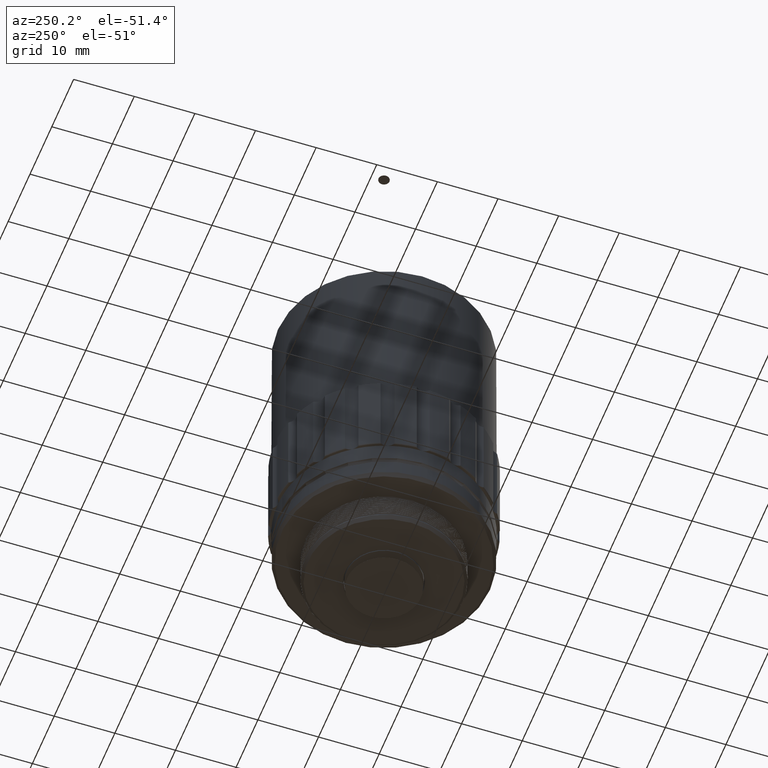
[diagram: clean part render]
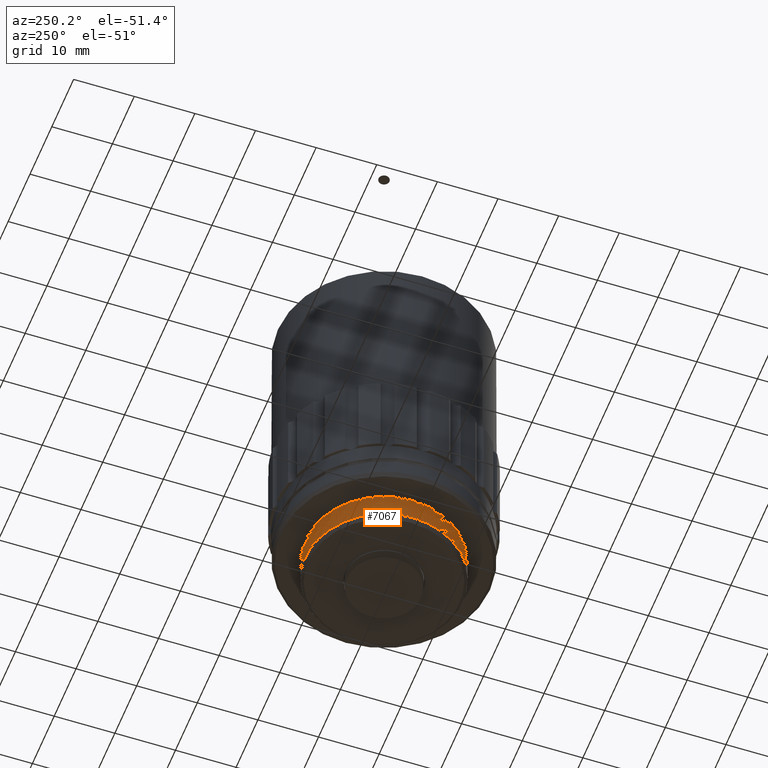
[diagram: same view with one face highlighted and labeled with its STEP entity id]
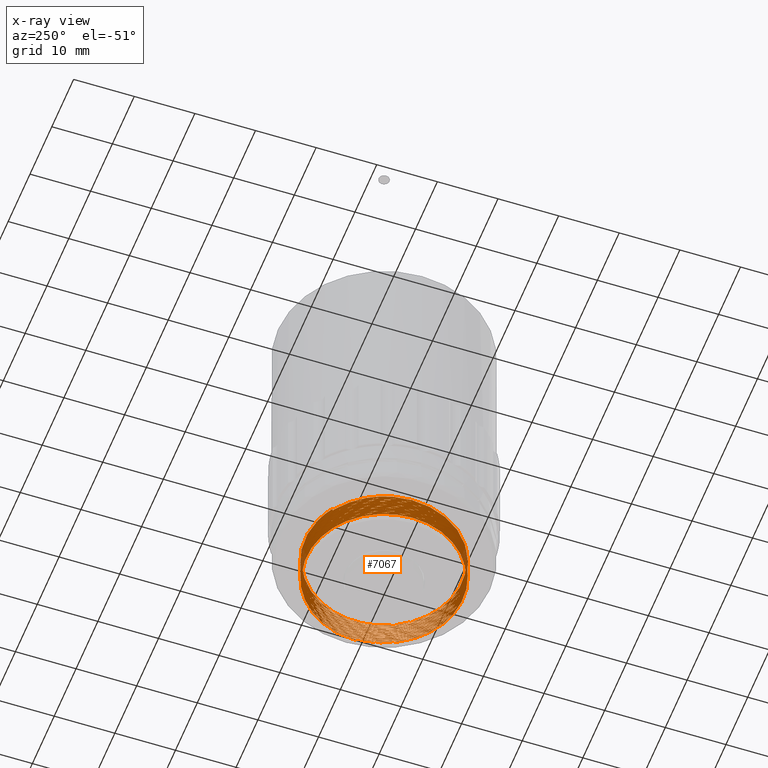
[diagram: x-ray of the same camera — body ghosted, the highlighted face saturated]
A machine part, auxiliary view. The second image highlights one B-rep face of the part: STEP entity #7067.
The next image is the same camera in x-ray: the body ghosted, the highlighted face saturated — about 0% of this face is hidden behind the body in this view.
In plain terms, the highlighted face is a freeform B-spline surface patch.
Its self-contained STEP definition (entity closure, byte-faithful):
#2 = CARTESIAN_POINT ( 'NONE',  ( -2.711930149157786700E-15, -14.76306012501421172, 1.314648436958030242 ) ) ;
#5 = CARTESIAN_POINT ( 'NONE',  ( -12.63279466231839443, 3.067979631565371790, 4.500000000000001776 ) ) ;
#35 = CARTESIAN_POINT ( 'NONE',  ( -12.78518510585937484, 7.381530062507109413, 4.357356770291362480 ) ) ;
#42 = CARTESIAN_POINT ( 'NONE',  ( -6.392592552929695415, -11.07229509376065657, 2.075325520291363190 ) ) ;
#83 = CARTESIAN_POINT ( 'NONE',  ( 6.392592552929680316, -11.07229509376066368, 1.744596353624696672 ) ) ;
#86 = CARTESIAN_POINT ( 'NONE',  ( 9.191652068949194084E-16, 15.01110699893027167, 4.415234373916059774 ) ) ;
#93 = CARTESIAN_POINT ( 'NONE',  ( -13.00000000000000355, 1.592040838891559490E-15, 1.339453123916060084 ) ) ;
#129 = CARTESIAN_POINT ( 'NONE',  ( 12.78518510585937484, -7.381530062507112966, 2.968294270291362391 ) ) ;
#142 = CARTESIAN_POINT ( 'NONE',  ( 6.500000000000003553, 11.25833024919770509, 0.4134114572493935436 ) ) ;
#172 = CARTESIAN_POINT ( 'NONE',  ( 12.78518510585937484, -7.381530062507112966, 4.158919270291362658 ) ) ;
#178 = CARTESIAN_POINT ( 'NONE',  ( 12.78518510585937484, -7.381530062507112078, 0.5870442702913634125 ) ) ;
#189 = CARTESIAN_POINT ( 'NONE',  ( -13.00000000000000000, 7.505553499465140277, 0.5126302072493935658 ) ) ;
#234 = CARTESIAN_POINT ( 'NONE',  ( 13.00000000000000355, 0.000000000000000000, 2.331640623916059862 ) ) ;
#239 = CARTESIAN_POINT ( 'NONE',  ( -13.00000000000000711, -7.505553499465131395, 0.9756510405827271137 ) ) ;
#263 = CARTESIAN_POINT ( 'NONE',  ( 6.392592552929680316, -11.07229509376066368, 3.728971353624696228 ) ) ;
#278 = CARTESIAN_POINT ( 'NONE',  ( 6.499999999999992895, -11.25833024919771042, 3.059244790582726470 ) ) ;
#309 = CARTESIAN_POINT ( 'NONE',  ( -12.78518510585937840, 1.565733601639710151E-15, 3.596679686958029531 ) ) ;
#320 = CARTESIAN_POINT ( 'NONE',  ( -6.500000000000007105, -11.25833024919770331, 2.993098957249392900 ) ) ;
#324 = CARTESIAN_POINT ( 'NONE',  ( 13.00000000000000000, -7.505553499465144718, 1.504817707249394010 ) ) ;
#353 = CARTESIAN_POINT ( 'NONE',  ( 12.78518510585937840, 0.000000000000000000, 1.413867186958030153 ) ) ;
#360 = CARTESIAN_POINT ( 'NONE',  ( -13.00000000000000711, -7.505553499465131395, 2.960026040582726559 ) ) ;
#363 = CARTESIAN_POINT ( 'NONE',  ( 9.191652068949194084E-16, 15.01110699893027167, 3.224609373916059951 ) ) ;
#394 = CARTESIAN_POINT ( 'NONE',  ( -12.78518510585937484, 7.381530062507109413, 1.976106770291363279 ) ) ;
#400 = CARTESIAN_POINT ( 'NONE',  ( 13.00000000000000000, -7.505553499465143830, 2.298567707249393077 ) ) ;
#404 = CARTESIAN_POINT ( 'NONE',  ( 13.00000000000000355, 7.505553499465135836, 3.158463540582726825 ) ) ;
#433 = CARTESIAN_POINT ( 'NONE',  ( 9.039767163859287686E-16, 14.76306012501420994, 0.7193359369580299978 ) ) ;
#442 = CARTESIAN_POINT ( 'NONE',  ( -6.867727155358189783, 11.03785865644037756, 4.847089313514743480 ) ) ;
#446 = CARTESIAN_POINT ( 'NONE',  ( -13.00000000000000711, -7.505553499465131395, 3.356901040582726647 ) ) ;
#480 = CARTESIAN_POINT ( 'NONE',  ( -12.78518510585938195, -7.381530062507100531, 2.439127603624696494 ) ) ;
#481 = CARTESIAN_POINT ( 'NONE',  ( -2.757495620684758422E-15, -15.01110699893027167, 4.613671873916059596 ) ) ;
#488 = CARTESIAN_POINT ( 'NONE',  ( 9.039767163859287686E-16, 14.76306012501421172, 0.7193359369580298868 ) ) ;
#492 = CARTESIAN_POINT ( 'NONE',  ( 9.191652068949194084E-16, 15.01110699893027167, 3.621484373916060040 ) ) ;
#528 = CARTESIAN_POINT ( 'NONE',  ( -12.78518510585938195, -7.381530062507100531, 2.836002603624697027 ) ) ;
#535 = CARTESIAN_POINT ( 'NONE',  ( -6.392592552929695415, -11.07229509376065657, 0.4878255202913635014 ) ) ;
#540 = CARTESIAN_POINT ( 'NONE',  ( -6.500000000000007105, -11.25833024919770331, 2.993098957249392900 ) ) ;
#557 = CARTESIAN_POINT ( 'NONE',  ( -6.499999999999999112, 11.25833024919770686, 0.8764322905827268695 ) ) ;
#574 = CARTESIAN_POINT ( 'NONE',  ( -6.392592552929686534, 11.07229509376066012, 3.530533853624696405 ) ) ;
#579 = CARTESIAN_POINT ( 'NONE',  ( 12.78518510585937840, 7.381530062507103196, 0.2563151036246968384 ) ) ;
#597 = CARTESIAN_POINT ( 'NONE',  ( 6.500000000000003553, 11.25833024919770509, 0.8102864572493935214 ) ) ;
#610 = CARTESIAN_POINT ( 'NONE',  ( 9.039767163859287686E-16, 14.76306012501420994, 4.688085936958029443 ) ) ;
#616 = CARTESIAN_POINT ( 'NONE',  ( 6.500000000000003553, 11.25833024919770509, 3.985286457249392900 ) ) ;
#622 = CARTESIAN_POINT ( 'NONE',  ( -13.00000000000000711, -7.505553499465131395, 3.753776040582726292 ) ) ;
#661 = CARTESIAN_POINT ( 'NONE',  ( 6.392592552929690974, 11.07229509376065835, 1.480013020291363501 ) ) ;
#692 = CARTESIAN_POINT ( 'NONE',  ( -12.78518510585937840, 1.565733601639710151E-15, 3.993554686958030064 ) ) ;
#700 = CARTESIAN_POINT ( 'NONE',  ( -12.78518510585937840, 1.565733601639710151E-15, 1.215429686958030109 ) ) ;
#739 = CARTESIAN_POINT ( 'NONE',  ( -12.78518510585937840, 1.565733601639710151E-15, 1.612304686958030198 ) ) ;
#783 =( BOUNDED_CURVE ( )  B_SPLINE_CURVE ( 2, ( #4935, #1619, #4277, #8328, #3181, #481, #8416, #7090, #4500, #5753, #7800, #7042, #6332, #1052, #3015 ),
 .UNSPECIFIED., .F., .F. ) 
 B_SPLINE_CURVE_WITH_KNOTS ( ( 3, 2, 2, 2, 2, 2, 2, 3 ),
 ( 0.8717786007923232772, 0.8750000000000000000, 0.8888888888888888395, 0.9027777777777777901, 0.9166666666666666297, 0.9305555555555555802, 0.9444444444444444198, 0.9449005619550967516 ),
 .UNSPECIFIED. ) 
 CURVE ( )  GEOMETRIC_REPRESENTATION_ITEM ( )  RATIONAL_B_SPLINE_CURVE ( ( 0.9522663961728567994, 0.9689258326169714053, 1.000000000000000000, 0.8660254037844387076, 1.000000000000000000, 0.8660254037844387076, 1.000000000000000000, 0.8660254037844387076, 1.000000000000000000, 0.8660254037844387076, 1.000000000000000000, 0.8660254037844387076, 1.000000000000000000, 0.9956002125292124916, 0.9914894071540597542 ) ) 
 REPRESENTATION_ITEM ( '' )  );
#784 = CARTESIAN_POINT ( 'NONE',  ( -12.78518510585937840, 1.565733601639710151E-15, 2.009179686958029620 ) ) ;
#825 = CARTESIAN_POINT ( 'NONE',  ( -2.711930149157786700E-15, -14.76306012501421172, 2.108398436958030420 ) ) ;
#841 = CARTESIAN_POINT ( 'NONE',  ( 9.191652068949194084E-16, 15.01110699893027345, 0.4464843739160602176 ) ) ;
#873 = CARTESIAN_POINT ( 'NONE',  ( -6.754243302907039670, 10.85546662268480844, 4.723065876556711729 ) ) ;
#878 = CARTESIAN_POINT ( 'NONE',  ( 12.78518510585937840, 0.000000000000000000, 0.6201171869580300866 ) ) ;
#885 = CARTESIAN_POINT ( 'NONE',  ( 9.191652068949194084E-16, 15.01110699893027345, 1.637109373916059818 ) ) ;
#918 = CARTESIAN_POINT ( 'NONE',  ( 12.78518510585937840, 0.000000000000000000, 4.191992186958029443 ) ) ;
#925 = CARTESIAN_POINT ( 'NONE',  ( 12.78518510585937840, 7.381530062507103196, 0.2563151036246968384 ) ) ;
#933 = CARTESIAN_POINT ( 'NONE',  ( -13.00000000000000711, -7.505553499465131395, 1.769401040582726958 ) ) ;
#957 = EDGE_LOOP ( 'NONE', ( #5672, #6596, #4654, #6602, #1450 ) ) ;
#960 = CARTESIAN_POINT ( 'NONE',  ( -2.711930149157786700E-15, -14.76306012501421172, 3.695898436958029443 ) ) ;
#972 = CARTESIAN_POINT ( 'NONE',  ( -13.00000000000000355, 1.592040838891559490E-15, 1.736328123916060173 ) ) ;
#977 = CARTESIAN_POINT ( 'NONE',  ( -2.757495620684758422E-15, -15.01110699893027167, 1.438671873916059996 ) ) ;
#1002 = CARTESIAN_POINT ( 'NONE',  ( -2.711930149157786700E-15, -14.76306012501421172, 4.489648436958028732 ) ) ;
#1006 = CARTESIAN_POINT ( 'NONE',  ( -12.78518510585937484, 7.381530062507109413, 2.769856770291363013 ) ) ;
#1017 = CARTESIAN_POINT ( 'NONE',  ( 6.499999999999992895, -11.25833024919771042, 1.471744790582727003 ) ) ;
#1021 = CARTESIAN_POINT ( 'NONE',  ( -13.00000000000000355, 1.592040838891559490E-15, 2.926953123916059774 ) ) ;
#1047 = CARTESIAN_POINT ( 'NONE',  ( 6.392592552929690974, 11.07229509376065835, 3.464388020291362835 ) ) ;
#1051 = CARTESIAN_POINT ( 'NONE',  ( 6.392592552929690974, 11.07229509376065835, 0.6862630202913634347 ) ) ;
#1052 = CARTESIAN_POINT ( 'NONE',  ( -6.685681334835739342, 11.15112708054680013, 4.846127063400199830 ) ) ;
#1057 = CARTESIAN_POINT ( 'NONE',  ( 13.00000000000000355, 7.505553499465135836, 3.555338540582726470 ) ) ;
#1061 = CARTESIAN_POINT ( 'NONE',  ( 13.00000000000000000, -7.505553499465144718, 2.298567707249393077 ) ) ;
#1070 =( BOUNDED_CURVE ( )  B_SPLINE_CURVE ( 1, ( #6096, #1475 ),
 .UNSPECIFIED., .F., .F. ) 
 B_SPLINE_CURVE_WITH_KNOTS ( ( 2, 2 ),
 ( 0.000000000000000000, 1.000000000000000000 ),
 .UNSPECIFIED. ) 
 CURVE ( )  GEOMETRIC_REPRESENTATION_ITEM ( )  RATIONAL_B_SPLINE_CURVE ( ( 0.9914893920507475977, 0.9914893920507475977 ) ) 
 REPRESENTATION_ITEM ( '' )  );
#1093 = CARTESIAN_POINT ( 'NONE',  ( 12.78518510585937840, 7.381530062507103196, 2.240690103624696672 ) ) ;
#1094 = CARTESIAN_POINT ( 'NONE',  ( 12.89259255292969009, 0.000000000000000000, 0.2852539054370451521 ) ) ;
#1098 = CARTESIAN_POINT ( 'NONE',  ( 6.500000000000003553, 11.25833024919770509, 4.382161457249393877 ) ) ;
#1103 = CARTESIAN_POINT ( 'NONE',  ( 6.499999999999992895, -11.25833024919771042, 1.868619790582726647 ) ) ;
#1136 = CARTESIAN_POINT ( 'NONE',  ( -6.392592552929686534, 11.07229509376066012, 1.943033853624696716 ) ) ;
#1141 = CARTESIAN_POINT ( 'NONE',  ( 12.78518510585937484, -7.381530062507112966, 0.5870442702913633015 ) ) ;
#1145 = CARTESIAN_POINT ( 'NONE',  ( 13.00000000000000355, 7.505553499465135836, 2.364713540582726647 ) ) ;
#1178 = CARTESIAN_POINT ( 'NONE',  ( -6.392592552929686534, 11.07229509376066012, 1.149283853624696761 ) ) ;
#1185 = CARTESIAN_POINT ( 'NONE',  ( -6.500000000000007105, -11.25833024919770331, 4.580598957249393699 ) ) ;
#1189 = CARTESIAN_POINT ( 'NONE',  ( 13.00000000000000000, -7.505553499465144718, 2.695442707249393166 ) ) ;
#1224 = CARTESIAN_POINT ( 'NONE',  ( -2.711930149157786700E-15, -14.76306012501420994, 4.092773436958029976 ) ) ;
#1229 = CARTESIAN_POINT ( 'NONE',  ( 6.499999999999992895, -11.25833024919771042, 4.249869790582726736 ) ) ;
#1264 = CARTESIAN_POINT ( 'NONE',  ( 12.78518510585937840, 7.381530062507103196, 4.621940103624695872 ) ) ;
#1270 = CARTESIAN_POINT ( 'NONE',  ( 9.191652068949194084E-16, 15.01110699893027345, 4.415234373916060662 ) ) ;
#1273 = CARTESIAN_POINT ( 'NONE',  ( 6.500000000000003553, 11.25833024919770509, 4.382161457249393877 ) ) ;
#1303 = CARTESIAN_POINT ( 'NONE',  ( 12.78518510585937484, -7.381530062507112078, 3.762044270291363457 ) ) ;
#1309 = CARTESIAN_POINT ( 'NONE',  ( 6.392592552929680316, -11.07229509376066368, 2.538346353624696405 ) ) ;
#1342 = CARTESIAN_POINT ( 'NONE',  ( 12.78518510585937840, 7.381530062507103196, 3.431315103624696494 ) ) ;
#1350 = CARTESIAN_POINT ( 'NONE',  ( -12.78518510585937484, 7.381530062507109413, 1.579231770291363413 ) ) ;
#1384 = CARTESIAN_POINT ( 'NONE',  ( -12.78518510585937484, 7.381530062507109413, 3.563606770291362746 ) ) ;
#1394 = CARTESIAN_POINT ( 'NONE',  ( 12.78518510585937840, 0.000000000000000000, 1.016992186958030286 ) ) ;
#1398 = CARTESIAN_POINT ( 'NONE',  ( 6.499999999999992895, -11.25833024919771042, 4.249869790582726736 ) ) ;
#1426 = EDGE_CURVE ( 'NONE', #5607, #3710, #5615, .T. ) ;
#1436 = CARTESIAN_POINT ( 'NONE',  ( 9.039767163859287686E-16, 14.76306012501421172, 1.116210936958030198 ) ) ;
#1441 = CARTESIAN_POINT ( 'NONE',  ( -12.78518510585937840, 1.565733601639710151E-15, 0.4216796869580301532 ) ) ;
#1450 = ORIENTED_EDGE ( 'NONE', *, *, #1426, .F. ) ;
#1475 = CARTESIAN_POINT ( 'NONE',  ( -6.867726483741749099, 11.03785907431836222, 4.847089309964740522 ) ) ;
#1482 = CARTESIAN_POINT ( 'NONE',  ( 6.392592552929680316, -11.07229509376066368, 2.935221353624696494 ) ) ;
#1494 = CARTESIAN_POINT ( 'NONE',  ( 13.00000000000000355, 7.505553499465135836, 0.7772135405827269583 ) ) ;
#1524 = CARTESIAN_POINT ( 'NONE',  ( 6.392592552929690974, 11.07229509376065835, 3.861263020291362924 ) ) ;
#1529 = CARTESIAN_POINT ( 'NONE',  ( -2.711930149157786700E-15, -14.76306012501420994, 0.5208984369580300644 ) ) ;
#1536 = CARTESIAN_POINT ( 'NONE',  ( 6.500000000000003553, 11.25833024919770509, 1.604036457249393477 ) ) ;
#1542 = CARTESIAN_POINT ( 'NONE',  ( -13.00000000000000000, 7.505553499465140277, 0.9095052072493935436 ) ) ;
#1581 = CARTESIAN_POINT ( 'NONE',  ( 6.500000000000003553, 11.25833024919770509, 2.794661457249393077 ) ) ;
#1610 = CARTESIAN_POINT ( 'NONE',  ( 9.039767163859287686E-16, 14.76306012501421172, 4.291210936958029798 ) ) ;
#1619 = CARTESIAN_POINT ( 'NONE',  ( -13.00000000000000178, 1.555965150728614077, 4.507596826672964241 ) ) ;
#1624 = CARTESIAN_POINT ( 'NONE',  ( -13.00000000000000355, 1.592040838891559490E-15, 2.926953123916059774 ) ) ;
#1629 = CARTESIAN_POINT ( 'NONE',  ( -13.00000000000000711, -7.505553499465131395, 1.372526040582726647 ) ) ;
#1657 = CARTESIAN_POINT ( 'NONE',  ( -6.392592552929686534, 11.07229509376066012, 4.324283853624695695 ) ) ;
#1661 = CARTESIAN_POINT ( 'NONE',  ( 6.392592552929690974, 11.07229509376065835, 1.876888020291363368 ) ) ;
#1670 = CARTESIAN_POINT ( 'NONE',  ( 13.00000000000000355, 7.505553499465135836, 3.158463540582726825 ) ) ;
#1678 = CARTESIAN_POINT ( 'NONE',  ( 13.00000000000000355, 0.000000000000000000, 2.331640623916059862 ) ) ;
#1695 = EDGE_CURVE ( 'NONE', #6539, #7801, #7726, .T. ) ;
#1708 = CARTESIAN_POINT ( 'NONE',  ( -12.78518510585938195, -7.381530062507100531, 1.248502603624696672 ) ) ;
#1715 = CARTESIAN_POINT ( 'NONE',  ( 6.499999999999992895, -11.25833024919771042, 3.456119790582726559 ) ) ;
#1718 = CARTESIAN_POINT ( 'NONE',  ( 6.499999999999992895, -11.25833024919771042, 3.059244790582726470 ) ) ;
#1748 = CARTESIAN_POINT ( 'NONE',  ( 6.392592552929680316, -11.07229509376066368, 1.347721353624696805 ) ) ;
#1754 = CARTESIAN_POINT ( 'NONE',  ( -13.00000000000000000, 7.505553499465140277, 3.687630207249393166 ) ) ;
#1758 = CARTESIAN_POINT ( 'NONE',  ( -6.499999999999999112, 11.25833024919770686, 3.257682290582726292 ) ) ;
#1792 = CARTESIAN_POINT ( 'NONE',  ( -12.78518510585937840, 1.565733601639710151E-15, 1.612304686958030198 ) ) ;
#1797 = CARTESIAN_POINT ( 'NONE',  ( 13.00000000000000355, 7.505553499465135836, 4.349088540582727092 ) ) ;
#1801 = CARTESIAN_POINT ( 'NONE',  ( -13.00000000000000000, 7.505553499465140277, 2.893880207249392988 ) ) ;
#1808 = EDGE_CURVE ( 'NONE', #7801, #8622, #1070, .T. ) ;
#1824 = CARTESIAN_POINT ( 'NONE',  ( -6.754243302907039670, 10.85546662268481022, 4.723065876556711729 ) ) ;
#1839 = CARTESIAN_POINT ( 'NONE',  ( 9.039767163859287686E-16, 14.76306012501420994, 2.703710936958029443 ) ) ;
#1845 = CARTESIAN_POINT ( 'NONE',  ( -2.711930149157786700E-15, -14.76306012501421172, 0.9177734369580301532 ) ) ;
#1849 = CARTESIAN_POINT ( 'NONE',  ( -2.757495620684758422E-15, -15.01110699893027167, 2.629296873916060040 ) ) ;
#1880 = CARTESIAN_POINT ( 'NONE',  ( 9.039767163859287686E-16, 14.76306012501420994, 3.100585936958029531 ) ) ;
#1887 = CARTESIAN_POINT ( 'NONE',  ( -13.00000000000000000, 7.505553499465140277, 4.084505207249392811 ) ) ;
#1905 = CARTESIAN_POINT ( 'NONE',  ( -13.00000000000000711, -7.505553499465131395, 0.5787760405827269139 ) ) ;
#1920 = CARTESIAN_POINT ( 'NONE',  ( 12.78518510585937484, -7.381530062507112078, 3.365169270291363368 ) ) ;
#1926 = CARTESIAN_POINT ( 'NONE',  ( -13.00000000000000355, 1.592040838891559490E-15, 4.117578123916059596 ) ) ;
#1961 = CARTESIAN_POINT ( 'NONE',  ( -6.392592552929686534, 11.07229509376066012, 3.133658853624696317 ) ) ;
#1967 = CARTESIAN_POINT ( 'NONE',  ( -6.392592552929686534, 11.07229509376066012, 2.339908853624696583 ) ) ;
#1993 = CARTESIAN_POINT ( 'NONE',  ( 12.78518510585937840, 0.000000000000000000, 3.001367186958029620 ) ) ;
#2000 = CARTESIAN_POINT ( 'NONE',  ( 12.78518510585937840, 0.000000000000000000, 1.810742186958030242 ) ) ;
#2004 = CARTESIAN_POINT ( 'NONE',  ( -13.00000000000000000, 7.505553499465140277, 4.084505207249393699 ) ) ;
#2040 = CARTESIAN_POINT ( 'NONE',  ( -12.78518510585937840, 1.565733601639710151E-15, 3.199804686958029443 ) ) ;
#2047 = CARTESIAN_POINT ( 'NONE',  ( 12.78518510585937840, 7.381530062507103196, 2.240690103624696228 ) ) ;
#2050 = CARTESIAN_POINT ( 'NONE',  ( 13.00000000000000355, 7.505553499465135836, 4.349088540582727092 ) ) ;
#2091 = CARTESIAN_POINT ( 'NONE',  ( -6.392592552929686534, 11.07229509376066012, 1.149283853624696761 ) ) ;
#2131 = CARTESIAN_POINT ( 'NONE',  ( 6.392592552929690974, 11.07229509376065835, 3.067513020291363190 ) ) ;
#2178 = CARTESIAN_POINT ( 'NONE',  ( -12.78518510585937484, 7.381530062507109413, 3.166731770291363102 ) ) ;
#2195 = CARTESIAN_POINT ( 'NONE',  ( -2.757495620684758422E-15, -15.01110699893027167, 0.6449218739160601510 ) ) ;
#2220 = CARTESIAN_POINT ( 'NONE',  ( 12.78518510585937840, 7.381530062507103196, 3.828190103624696583 ) ) ;
#2233 = CARTESIAN_POINT ( 'NONE',  ( -6.500000000000007105, -11.25833024919770331, 2.596223957249393255 ) ) ;
#2237 = CARTESIAN_POINT ( 'NONE',  ( 13.00000000000000355, 0.000000000000000000, 1.141015623916060262 ) ) ;
#2260 = CARTESIAN_POINT ( 'NONE',  ( 12.78518510585937484, -7.381530062507112966, 3.365169270291362480 ) ) ;
#2265 = CARTESIAN_POINT ( 'NONE',  ( -6.392592552929686534, 11.07229509376066012, 0.3555338536246968051 ) ) ;
#2271 = CARTESIAN_POINT ( 'NONE',  ( 6.499999999999992895, -11.25833024919771042, 2.662369790582726381 ) ) ;
#2275 = CARTESIAN_POINT ( 'NONE',  ( -6.499999999999999112, 11.25833024919770686, 1.273307290582726736 ) ) ;
#2307 = CARTESIAN_POINT ( 'NONE',  ( 12.78518510585937840, 0.000000000000000000, 4.588867186958029976 ) ) ;
#2313 = CARTESIAN_POINT ( 'NONE',  ( -6.392592552929686534, 11.07229509376066012, 0.7524088536246967829 ) ) ;
#2320 = CARTESIAN_POINT ( 'NONE',  ( -13.00000000000000000, 7.505553499465140277, 3.290755207249393521 ) ) ;
#2325 = CARTESIAN_POINT ( 'NONE',  ( 6.499999999999992895, -11.25833024919771042, 0.6779947905827268251 ) ) ;
#2355 = CARTESIAN_POINT ( 'NONE',  ( -2.711930149157786700E-15, -14.76306012501420994, 2.505273436958029620 ) ) ;
#2364 = CARTESIAN_POINT ( 'NONE',  ( 13.00000000000000355, 0.000000000000000000, 3.125390623916060040 ) ) ;
#2369 = CARTESIAN_POINT ( 'NONE',  ( -13.00000000000000711, -7.505553499465131395, 2.166276040582726825 ) ) ;
#2398 = CARTESIAN_POINT ( 'NONE',  ( -12.78518510585938195, -7.381530062507100531, 2.042252603624696849 ) ) ;
#2404 = CARTESIAN_POINT ( 'NONE',  ( 6.392592552929680316, -11.07229509376066368, 0.5539713536246968495 ) ) ;
#2408 = CARTESIAN_POINT ( 'NONE',  ( -13.00000000000000711, -7.505553499465131395, 1.769401040582726958 ) ) ;
#2440 = CARTESIAN_POINT ( 'NONE',  ( 9.039767163859287686E-16, 14.76306012501420994, 1.909960936958030153 ) ) ;
#2448 = CARTESIAN_POINT ( 'NONE',  ( -2.757495620684758422E-15, -15.01110699893027345, 4.216796873916060839 ) ) ;
#2453 = CARTESIAN_POINT ( 'NONE',  ( -6.499999999999999112, 11.25833024919770686, 2.067057290582726914 ) ) ;
#2486 = CARTESIAN_POINT ( 'NONE',  ( 12.78518510585937840, 0.000000000000000000, 2.604492186958029531 ) ) ;
#2493 = CARTESIAN_POINT ( 'NONE',  ( -13.00000000000000355, 1.592040838891559490E-15, 4.514453123916060129 ) ) ;
#2497 = CARTESIAN_POINT ( 'NONE',  ( 13.00000000000000000, -7.505553499465144718, 1.901692707249393655 ) ) ;
#2530 = CARTESIAN_POINT ( 'NONE',  ( -12.78518510585937840, 1.565733601639710151E-15, 4.390429686958030153 ) ) ;
#2536 = CARTESIAN_POINT ( 'NONE',  ( -6.500000000000007105, -11.25833024919770331, 4.183723957249393166 ) ) ;
#2540 = CARTESIAN_POINT ( 'NONE',  ( 6.500000000000003553, 11.25833024919770509, 1.604036457249393477 ) ) ;
#2572 = CARTESIAN_POINT ( 'NONE',  ( 6.392592552929680316, -11.07229509376066368, 4.125846353624695872 ) ) ;
#2580 = CARTESIAN_POINT ( 'NONE',  ( 6.499999999999992895, -11.25833024919771042, 3.852994790582726203 ) ) ;
#2600 = CARTESIAN_POINT ( 'NONE',  ( -13.00000000000000000, 7.505553499465140277, 1.306380207249393299 ) ) ;
#2613 = CARTESIAN_POINT ( 'NONE',  ( 9.039767163859287686E-16, 14.76306012501420994, 4.291210936958029798 ) ) ;
#2619 = CARTESIAN_POINT ( 'NONE',  ( 6.392592552929690974, 11.07229509376065835, 2.273763020291363013 ) ) ;
#2649 = CARTESIAN_POINT ( 'NONE',  ( -2.711930149157786700E-15, -14.76306012501420994, 3.299023436958029798 ) ) ;
#2656 = CARTESIAN_POINT ( 'NONE',  ( -2.711930149157786700E-15, -14.76306012501421172, 1.711523436958030109 ) ) ;
#2691 = CARTESIAN_POINT ( 'NONE',  ( 6.392592552929690974, 11.07229509376065835, 3.067513020291363190 ) ) ;
#2697 = CARTESIAN_POINT ( 'NONE',  ( -12.78518510585937484, 7.381530062507109413, 1.976106770291363279 ) ) ;
#2702 = CARTESIAN_POINT ( 'NONE',  ( -2.757495620684758422E-15, -15.01110699893027167, 3.819921873916059862 ) ) ;
#2710 = VECTOR ( 'NONE', #5062, 1000.000000000000114 ) ;
#2745 = CARTESIAN_POINT ( 'NONE',  ( -6.392592552929686534, 11.07229509376066012, 2.736783853624696672 ) ) ;
#2750 = CARTESIAN_POINT ( 'NONE',  ( 13.00000000000000000, -7.505553499465144718, 3.886067707249393433 ) ) ;
#2756 = CARTESIAN_POINT ( 'NONE',  ( -13.00000000000000711, -7.505553499465131395, 1.372526040582726425 ) ) ;
#2789 = CARTESIAN_POINT ( 'NONE',  ( 9.039767163859287686E-16, 14.76306012501421172, 1.909960936958030153 ) ) ;
#2800 = CARTESIAN_POINT ( 'NONE',  ( -6.499999999999999112, 11.25833024919770686, 0.4795572905827268362 ) ) ;
#2831 = CARTESIAN_POINT ( 'NONE',  ( 9.039767163859287686E-16, 14.76306012501421172, 3.100585936958029531 ) ) ;
#2845 = CARTESIAN_POINT ( 'NONE',  ( 13.00000000000000355, 0.000000000000000000, 0.7441406239160601732 ) ) ;
#2849 = CARTESIAN_POINT ( 'NONE',  ( -6.500000000000007105, -11.25833024919770331, 0.6118489572493935880 ) ) ;
#2876 = CARTESIAN_POINT ( 'NONE',  ( -6.392592552929695415, -11.07229509376065657, 3.265950520291363013 ) ) ;
#2888 = CARTESIAN_POINT ( 'NONE',  ( -13.00000000000000000, 7.505553499465140277, 1.703255207249393388 ) ) ;
#2893 = CARTESIAN_POINT ( 'NONE',  ( -6.500000000000007105, -11.25833024919770331, 1.008723957249393566 ) ) ;
#2919 = CARTESIAN_POINT ( 'NONE',  ( -12.78518510585938017, -7.381530062507101420, 4.026627603624696405 ) ) ;
#2934 = CARTESIAN_POINT ( 'NONE',  ( -13.00000000000000000, 7.505553499465140277, 2.893880207249393433 ) ) ;
#2944 = EDGE_CURVE ( 'NONE', #3710, #8622, #783, .T. ) ;
#2964 = CARTESIAN_POINT ( 'NONE',  ( -6.392592552929695415, -11.07229509376065657, 3.662825520291363102 ) ) ;
#2968 = CARTESIAN_POINT ( 'NONE',  ( 6.392592552929690974, 11.07229509376065835, 2.273763020291363013 ) ) ;
#2975 = CARTESIAN_POINT ( 'NONE',  ( -6.499999999999999112, 11.25833024919770686, 2.860807290582726647 ) ) ;
#2998 = EDGE_CURVE ( 'NONE', #5607, #6539, #3750, .T. ) ;
#3013 = CARTESIAN_POINT ( 'NONE',  ( -6.392592552929695415, -11.07229509376065657, 1.281575520291363457 ) ) ;
#3015 = CARTESIAN_POINT ( 'NONE',  ( -6.867726483741749099, 11.03785907431836222, 4.847089309964740522 ) ) ;
#3021 = CARTESIAN_POINT ( 'NONE',  ( -13.00000000000000355, 1.592040838891559490E-15, 3.323828123916059862 ) ) ;
#3026 = CARTESIAN_POINT ( 'NONE',  ( -6.500000000000007105, -11.25833024919770331, 2.199348957249393166 ) ) ;
#3056 = CARTESIAN_POINT ( 'NONE',  ( -6.392592552929695415, -11.07229509376065657, 0.8847005202913633681 ) ) ;
#3062 = CARTESIAN_POINT ( 'NONE',  ( -6.499999999999999112, 11.25833024919770686, 2.067057290582726914 ) ) ;
#3067 = CARTESIAN_POINT ( 'NONE',  ( -6.499999999999999112, 11.25833024919770686, 1.670182290582726825 ) ) ;
#3096 = CARTESIAN_POINT ( 'NONE',  ( -2.711930149157786700E-15, -14.76306012501420994, 1.711523436958030109 ) ) ;
#3104 = CARTESIAN_POINT ( 'NONE',  ( -2.711930149157786700E-15, -14.76306012501421172, 0.5208984369580300644 ) ) ;
#3107 = CARTESIAN_POINT ( 'NONE',  ( -6.500000000000007105, -11.25833024919770331, 3.389973957249392988 ) ) ;
#3138 = CARTESIAN_POINT ( 'NONE',  ( 9.039767163859287686E-16, 14.76306012501420994, 2.306835936958029798 ) ) ;
#3145 = CARTESIAN_POINT ( 'NONE',  ( -6.392592552929686534, 11.07229509376066012, 0.7524088536246967829 ) ) ;
#3148 = CARTESIAN_POINT ( 'NONE',  ( -13.00000000000000355, 1.592040838891559490E-15, 2.133203123916060040 ) ) ;
#3180 = CARTESIAN_POINT ( 'NONE',  ( -12.78518510585938195, -7.381530062507100531, 3.629752603624696761 ) ) ;
#3181 = CARTESIAN_POINT ( 'NONE',  ( -6.500000000000007105, -11.25833024919770331, 4.580598957249393699 ) ) ;
#3186 = CARTESIAN_POINT ( 'NONE',  ( -2.757495620684758422E-15, -15.01110699893027345, 4.613671873916059596 ) ) ;
#3190 = CARTESIAN_POINT ( 'NONE',  ( 13.00000000000000355, 0.000000000000000000, 3.125390623916060040 ) ) ;
#3211 = CARTESIAN_POINT ( 'NONE',  ( -13.00000000000000355, 1.592040838891559490E-15, 0.9425781239160601066 ) ) ;
#3226 = CARTESIAN_POINT ( 'NONE',  ( 12.78518510585937840, 0.000000000000000000, 3.795117186958029354 ) ) ;
#3232 = CARTESIAN_POINT ( 'NONE',  ( -12.78518510585937840, 1.565733601639710151E-15, 0.4216796869580301532 ) ) ;
#3236 = CARTESIAN_POINT ( 'NONE',  ( -13.00000000000000000, 7.505553499465140277, 3.687630207249392722 ) ) ;
#3252 = CARTESIAN_POINT ( 'NONE',  ( -13.00000000000000711, -7.505553499465131395, 0.9756510405827270027 ) ) ;
#3268 = CARTESIAN_POINT ( 'NONE',  ( -6.392592552929695415, -11.07229509376065657, 3.265950520291363013 ) ) ;
#3275 = CARTESIAN_POINT ( 'NONE',  ( -12.78518510585938017, -7.381530062507101420, 0.4547526036246967718 ) ) ;
#3278 = CARTESIAN_POINT ( 'NONE',  ( 6.500000000000003553, 11.25833024919770509, 3.985286457249392900 ) ) ;
#3315 = CARTESIAN_POINT ( 'NONE',  ( -6.392592552929686534, 11.07229509376066012, 1.546158853624696627 ) ) ;
#3318 = CARTESIAN_POINT ( 'NONE',  ( 13.00000000000000000, -7.505553499465144718, 4.282942707249393521 ) ) ;
#3350 = CARTESIAN_POINT ( 'NONE',  ( 12.78518510585937840, 0.000000000000000000, 4.191992186958029443 ) ) ;
#3357 = CARTESIAN_POINT ( 'NONE',  ( 12.78518510585937840, 7.381530062507103196, 1.446940103624696938 ) ) ;
#3396 = CARTESIAN_POINT ( 'NONE',  ( 12.78518510585937484, -7.381530062507112966, 0.9839192702913636124 ) ) ;
#3408 = CARTESIAN_POINT ( 'NONE',  ( 6.500000000000003553, 11.25833024919770509, 1.207161457249393610 ) ) ;
#3440 = CARTESIAN_POINT ( 'NONE',  ( -6.392592552929695415, -11.07229509376065657, 2.869075520291362924 ) ) ;
#3450 = CARTESIAN_POINT ( 'NONE',  ( 13.00000000000000355, 0.000000000000000000, 0.3472656239160602509 ) ) ;
#3486 = CARTESIAN_POINT ( 'NONE',  ( -12.78518510585938017, -7.381530062507101420, 1.248502603624696894 ) ) ;
#3490 = CARTESIAN_POINT ( 'NONE',  ( 12.78518510585937840, 0.000000000000000000, 0.2232421869580301643 ) ) ;
#3496 = CARTESIAN_POINT ( 'NONE',  ( -13.00000000000000000, 7.505553499465140277, 0.5126302072493935658 ) ) ;
#3525 = CARTESIAN_POINT ( 'NONE',  ( -6.392592552929695415, -11.07229509376065657, 4.456575520291362835 ) ) ;
#3529 = CARTESIAN_POINT ( 'NONE',  ( 12.78518510585937840, 7.381530062507103196, 0.6531901036246968717 ) ) ;
#3537 = CARTESIAN_POINT ( 'NONE',  ( -13.00000000000000355, 1.592040838891559490E-15, 2.133203123916060040 ) ) ;
#3541 = CARTESIAN_POINT ( 'NONE',  ( 9.191652068949194084E-16, 15.01110699893027167, 0.8433593739160600844 ) ) ;
#3584 = CARTESIAN_POINT ( 'NONE',  ( 13.00000000000000355, 7.505553499465135836, 1.967838540582726559 ) ) ;
#3616 = CARTESIAN_POINT ( 'NONE',  ( 12.78518510585937484, -7.381530062507112966, 4.555794270291363190 ) ) ;
#3630 = CARTESIAN_POINT ( 'NONE',  ( 9.191652068949194084E-16, 15.01110699893027345, 3.224609373916059507 ) ) ;
#3634 = CARTESIAN_POINT ( 'NONE',  ( -13.00000000000000355, 1.592040838891559490E-15, 0.5457031239160601288 ) ) ;
#3665 = CARTESIAN_POINT ( 'NONE',  ( -12.78518510585938195, -7.381530062507100531, 0.8516276036246966941 ) ) ;
#3671 = CARTESIAN_POINT ( 'NONE',  ( -13.00000000000000355, 1.592040838891559490E-15, 2.530078123916060129 ) ) ;
#3674 = CARTESIAN_POINT ( 'NONE',  ( 9.191652068949194084E-16, 15.01110699893027167, 2.033984373916060129 ) ) ;
#3707 = CARTESIAN_POINT ( 'NONE',  ( -12.78518510585937484, 7.381530062507109413, 1.182356770291363324 ) ) ;
#3710 = VERTEX_POINT ( 'NONE', #3796 ) ;
#3714 = CARTESIAN_POINT ( 'NONE',  ( -6.499999999999999112, 11.25833024919770686, 1.670182290582726825 ) ) ;
#3717 = CARTESIAN_POINT ( 'NONE',  ( -6.499999999999999112, 11.25833024919770686, 2.463932290582726559 ) ) ;
#3748 = CARTESIAN_POINT ( 'NONE',  ( -12.78518510585937484, 7.381530062507109413, 2.372981770291363368 ) ) ;
#3750 = LINE ( 'NONE', #1094, #2710 ) ;
#3754 = CARTESIAN_POINT ( 'NONE',  ( 13.00000000000000000, -7.505553499465143830, 4.679817707249394054 ) ) ;
#3760 = CARTESIAN_POINT ( 'NONE',  ( -13.00000000000000355, 1.592040838891559490E-15, 2.530078123916060129 ) ) ;
#3791 = CARTESIAN_POINT ( 'NONE',  ( 12.78518510585937840, 0.000000000000000000, 2.207617186958029443 ) ) ;
#3796 = CARTESIAN_POINT ( 'NONE',  ( -12.63279466231839443, 3.067979631565371790, 4.500000000000001776 ) ) ;
#3799 = CARTESIAN_POINT ( 'NONE',  ( -13.00000000000000000, 7.505553499465140277, 4.481380207249392456 ) ) ;
#3802 = CARTESIAN_POINT ( 'NONE',  ( 13.00000000000000000, -7.505553499465144718, 3.489192707249392900 ) ) ;
#3835 = CARTESIAN_POINT ( 'NONE',  ( 12.78518510585937484, -7.381530062507112078, 1.380794270291363590 ) ) ;
#3843 = CARTESIAN_POINT ( 'NONE',  ( -12.78518510585937484, 7.381530062507109413, 0.7854817702913635680 ) ) ;
#3846 = CARTESIAN_POINT ( 'NONE',  ( 13.00000000000000355, 0.000000000000000000, 2.728515623916059951 ) ) ;
#3879 = CARTESIAN_POINT ( 'NONE',  ( 12.78518510585937484, -7.381530062507112078, 4.158919270291362658 ) ) ;
#3887 = CARTESIAN_POINT ( 'NONE',  ( -2.757495620684758422E-15, -15.01110699893027345, 3.819921873916059862 ) ) ;
#3892 = CARTESIAN_POINT ( 'NONE',  ( 13.00000000000000355, 7.505553499465135836, 3.952213540582726559 ) ) ;
#3920 = CARTESIAN_POINT ( 'NONE',  ( 6.392592552929690974, 11.07229509376065835, 4.655013020291362658 ) ) ;
#3928 = CARTESIAN_POINT ( 'NONE',  ( 6.500000000000003553, 11.25833024919770509, 4.779036457249393521 ) ) ;
#3931 = CARTESIAN_POINT ( 'NONE',  ( 9.191652068949194084E-16, 15.01110699893027167, 4.018359373916059241 ) ) ;
#3967 = CARTESIAN_POINT ( 'NONE',  ( 6.392592552929680316, -11.07229509376066368, 2.141471353624696761 ) ) ;
#4000 = CARTESIAN_POINT ( 'NONE',  ( 12.78518510585937484, -7.381530062507112078, 2.968294270291362835 ) ) ;
#4007 = CARTESIAN_POINT ( 'NONE',  ( 12.78518510585937484, -7.381530062507112966, 2.174544270291363102 ) ) ;
#4041 = CARTESIAN_POINT ( 'NONE',  ( -12.78518510585938195, -7.381530062507100531, 3.232877603624696228 ) ) ;
#4047 = CARTESIAN_POINT ( 'NONE',  ( 6.392592552929690974, 11.07229509376065835, 2.670638020291363102 ) ) ;
#4060 = CARTESIAN_POINT ( 'NONE',  ( 9.191652068949194084E-16, 15.01110699893027345, 0.8433593739160601954 ) ) ;
#4087 = CARTESIAN_POINT ( 'NONE',  ( -12.78518510585937484, 7.381530062507109413, 2.769856770291363013 ) ) ;
#4133 = CARTESIAN_POINT ( 'NONE',  ( -12.78518510585937484, 7.381530062507109413, 1.182356770291363546 ) ) ;
#4137 = CARTESIAN_POINT ( 'NONE',  ( -12.78518510585938195, -7.381530062507100531, 0.4547526036246967718 ) ) ;
#4179 = CARTESIAN_POINT ( 'NONE',  ( 12.78518510585937840, 7.381530062507103196, 4.225065103624696228 ) ) ;
#4190 = CARTESIAN_POINT ( 'NONE',  ( -6.500000000000007105, -11.25833024919770331, 1.802473957249393299 ) ) ;
#4195 = CARTESIAN_POINT ( 'NONE',  ( 13.00000000000000355, 7.505553499465135836, 0.3803385405827268695 ) ) ;
#4222 = CARTESIAN_POINT ( 'NONE',  ( -2.711930149157786700E-15, -14.76306012501421172, 4.092773436958029087 ) ) ;
#4234 = CARTESIAN_POINT ( 'NONE',  ( -2.757495620684758422E-15, -15.01110699893027345, 2.232421873916060395 ) ) ;
#4239 = CARTESIAN_POINT ( 'NONE',  ( 6.500000000000003553, 11.25833024919770509, 1.207161457249393610 ) ) ;
#4270 = CARTESIAN_POINT ( 'NONE',  ( -12.78518510585937484, 7.381530062507109413, 4.357356770291362480 ) ) ;
#4277 = CARTESIAN_POINT ( 'NONE',  ( -13.00000000000000355, 1.592040838891559490E-15, 4.514453123916060129 ) ) ;
#4283 = CARTESIAN_POINT ( 'NONE',  ( 9.191652068949194084E-16, 15.01110699893027345, 2.033984373916060129 ) ) ;
#4287 = CARTESIAN_POINT ( 'NONE',  ( -6.500000000000007105, -11.25833024919770331, 1.405598957249393655 ) ) ;
#4314 = CARTESIAN_POINT ( 'NONE',  ( -6.392592552929686534, 11.07229509376066012, 3.530533853624696405 ) ) ;
#4319 = CARTESIAN_POINT ( 'NONE',  ( 12.78518510585937484, -7.381530062507112078, 1.777669270291363457 ) ) ;
#4327 = CARTESIAN_POINT ( 'NONE',  ( 13.00000000000000355, 7.505553499465135836, 1.570963540582727136 ) ) ;
#4330 = CARTESIAN_POINT ( 'NONE',  ( 13.00000000000000355, 7.505553499465135836, 2.761588540582727180 ) ) ;
#4359 = CARTESIAN_POINT ( 'NONE',  ( -6.392592552929686534, 11.07229509376066012, 1.546158853624696627 ) ) ;
#4367 = CARTESIAN_POINT ( 'NONE',  ( 6.499999999999992895, -11.25833024919771042, 2.265494790582726736 ) ) ;
#4371 = CARTESIAN_POINT ( 'NONE',  ( -13.00000000000000000, 7.505553499465140277, 2.497005207249392900 ) ) ;
#4408 = CARTESIAN_POINT ( 'NONE',  ( 12.78518510585937484, -7.381530062507112078, 0.9839192702913635014 ) ) ;
#4414 = CARTESIAN_POINT ( 'NONE',  ( -13.00000000000000711, -7.505553499465131395, 3.753776040582725848 ) ) ;
#4418 = CARTESIAN_POINT ( 'NONE',  ( 13.00000000000000355, 7.505553499465135836, 1.570963540582726692 ) ) ;
#4448 = CARTESIAN_POINT ( 'NONE',  ( -12.78518510585937484, 7.381530062507109413, 0.7854817702913633459 ) ) ;
#4456 = CARTESIAN_POINT ( 'NONE',  ( 9.191652068949194084E-16, 15.01110699893027345, 3.621484373916059596 ) ) ;
#4463 = CARTESIAN_POINT ( 'NONE',  ( 13.00000000000000355, 0.000000000000000000, 1.934765623916059996 ) ) ;
#4498 = CARTESIAN_POINT ( 'NONE',  ( -6.392592552929686534, 11.07229509376066012, 2.736783853624696672 ) ) ;
#4500 = CARTESIAN_POINT ( 'NONE',  ( 13.00000000000000355, 0.000000000000000000, 4.712890623916059951 ) ) ;
#4506 = CARTESIAN_POINT ( 'NONE',  ( -6.499999999999999112, 11.25833024919770686, 4.845182290582727092 ) ) ;
#4509 = CARTESIAN_POINT ( 'NONE',  ( 6.499999999999992895, -11.25833024919771042, 2.265494790582726736 ) ) ;
#4545 = CARTESIAN_POINT ( 'NONE',  ( -6.392592552929695415, -11.07229509376065657, 4.059700520291363190 ) ) ;
#4553 = CARTESIAN_POINT ( 'NONE',  ( -13.00000000000000355, 1.592040838891559490E-15, 3.720703123916059951 ) ) ;
#4586 = CARTESIAN_POINT ( 'NONE',  ( 12.78518510585937840, 7.381530062507103196, 4.225065103624696228 ) ) ;
#4595 = CARTESIAN_POINT ( 'NONE',  ( -13.00000000000000711, -7.505553499465131395, 4.547526040582726914 ) ) ;
#4598 = CARTESIAN_POINT ( 'NONE',  ( -13.00000000000000355, 1.592040838891559490E-15, 3.720703123916059951 ) ) ;
#4626 = CARTESIAN_POINT ( 'NONE',  ( -2.711930149157786700E-15, -14.76306012501420994, 2.902148436958029709 ) ) ;
#4633 = CARTESIAN_POINT ( 'NONE',  ( 6.392592552929680316, -11.07229509376066368, 1.347721353624696805 ) ) ;
#4654 = ORIENTED_EDGE ( 'NONE', *, *, #1808, .T. ) ;
#4667 = CARTESIAN_POINT ( 'NONE',  ( -6.392592552929686534, 11.07229509376066012, 3.927408853624696494 ) ) ;
#4674 = CARTESIAN_POINT ( 'NONE',  ( 6.392592552929690974, 11.07229509376065835, 1.876888020291363368 ) ) ;
#4705 = CARTESIAN_POINT ( 'NONE',  ( 9.039767163859287686E-16, 14.76306012501420994, 3.497460936958030064 ) ) ;
#4712 = CARTESIAN_POINT ( 'NONE',  ( -6.392592552929695415, -11.07229509376065657, 2.472200520291363279 ) ) ;
#4716 = CARTESIAN_POINT ( 'NONE',  ( -6.499999999999999112, 11.25833024919770686, 4.448307290582726559 ) ) ;
#4757 = CARTESIAN_POINT ( 'NONE',  ( 12.78518510585937840, 7.381530062507103196, 1.050065103624696627 ) ) ;
#4799 = CARTESIAN_POINT ( 'NONE',  ( 12.78518510585937840, 7.381530062507103196, 1.843815103624696805 ) ) ;
#4812 = CARTESIAN_POINT ( 'NONE',  ( 6.499999999999992895, -11.25833024919771042, 1.074869790582726914 ) ) ;
#4843 = CARTESIAN_POINT ( 'NONE',  ( -12.78518510585937484, 7.381530062507109413, 3.563606770291362746 ) ) ;
#4853 = CARTESIAN_POINT ( 'NONE',  ( 13.00000000000000355, 0.000000000000000000, 0.3472656239160602509 ) ) ;
#4855 = CARTESIAN_POINT ( 'NONE',  ( 13.00000000000000355, 7.505553499465135836, 2.761588540582727180 ) ) ;
#4860 = CARTESIAN_POINT ( 'NONE',  ( 13.00000000000000000, -7.505553499465144718, 0.7110677072493934991 ) ) ;
#4886 = CARTESIAN_POINT ( 'NONE',  ( -12.78518510585937484, 7.381530062507109413, 3.960481770291362835 ) ) ;
#4896 = CARTESIAN_POINT ( 'NONE',  ( 6.500000000000003553, 11.25833024919770509, 2.000911457249393344 ) ) ;
#4902 = CARTESIAN_POINT ( 'NONE',  ( 13.00000000000000355, 7.505553499465135836, 0.7772135405827269583 ) ) ;
#4929 = CARTESIAN_POINT ( 'NONE',  ( 12.78518510585937840, 7.381530062507103196, 3.431315103624696494 ) ) ;
#4933 = CARTESIAN_POINT ( 'NONE',  ( 6.392592552929680316, -11.07229509376066368, 0.5539713536246968495 ) ) ;
#4935 = CARTESIAN_POINT ( 'NONE',  ( -12.63279466231839443, 3.067979631565371790, 4.500000000000001776 ) ) ;
#4940 = CARTESIAN_POINT ( 'NONE',  ( 13.00000000000000000, -7.505553499465143830, 3.092317707249392811 ) ) ;
#4946 = CARTESIAN_POINT ( 'NONE',  ( -13.00000000000000000, 7.505553499465140277, 1.306380207249393743 ) ) ;
#4971 = CARTESIAN_POINT ( 'NONE',  ( -6.392592552929686534, 11.07229509376066012, 3.927408853624696494 ) ) ;
#4976 = CARTESIAN_POINT ( 'NONE',  ( 12.78518510585937840, 7.381530062507103196, 1.050065103624696627 ) ) ;
#4983 = CARTESIAN_POINT ( 'NONE',  ( -13.00000000000000711, -7.505553499465131395, 3.356901040582726203 ) ) ;
#4987 = CARTESIAN_POINT ( 'NONE',  ( 13.00000000000000355, 0.000000000000000000, 0.7441406239160601732 ) ) ;
#5018 = CARTESIAN_POINT ( 'NONE',  ( -6.392592552929686534, 11.07229509376066012, 3.133658853624696317 ) ) ;
#5023 = CARTESIAN_POINT ( 'NONE',  ( 12.78518510585937484, -7.381530062507112078, 2.571419270291363635 ) ) ;
#5029 = CARTESIAN_POINT ( 'NONE',  ( -2.757495620684758422E-15, -15.01110699893027345, 3.423046873916059774 ) ) ;
#5033 = CARTESIAN_POINT ( 'NONE',  ( 9.191652068949194084E-16, 15.01110699893027167, 2.827734373916059862 ) ) ;
#5061 = CARTESIAN_POINT ( 'NONE',  ( -6.392592552929695415, -11.07229509376065657, 2.075325520291363190 ) ) ;
#5062 = DIRECTION ( 'NONE',  ( -0.8660254037844399289, 0.000000000000000000, -0.4999999999999976685 ) ) ;
#5066 = CARTESIAN_POINT ( 'NONE',  ( 13.00000000000000355, 7.505553499465135836, 3.952213540582726559 ) ) ;
#5069 = CARTESIAN_POINT ( 'NONE',  ( -2.757495620684758422E-15, -15.01110699893027167, 2.232421873916060395 ) ) ;
#5102 = CARTESIAN_POINT ( 'NONE',  ( 9.039767163859287686E-16, 14.76306012501420994, 1.116210936958030198 ) ) ;
#5108 = CARTESIAN_POINT ( 'NONE',  ( 6.499999999999992895, -11.25833024919771042, 4.646744790582726381 ) ) ;
#5112 = CARTESIAN_POINT ( 'NONE',  ( 13.00000000000000355, 0.000000000000000000, 3.522265623916060129 ) ) ;
#5143 = CARTESIAN_POINT ( 'NONE',  ( 12.78518510585937840, 7.381530062507103196, 2.637565103624696761 ) ) ;
#5149 = CARTESIAN_POINT ( 'NONE',  ( -12.78518510585937840, 1.565733601639710151E-15, 0.8185546869580300200 ) ) ;
#5155 = CARTESIAN_POINT ( 'NONE',  ( 13.00000000000000355, 0.000000000000000000, 1.537890623916059907 ) ) ;
#5191 = CARTESIAN_POINT ( 'NONE',  ( -12.78518510585938195, -7.381530062507100531, 4.423502603624696050 ) ) ;
#5197 = CARTESIAN_POINT ( 'NONE',  ( 6.392592552929680316, -11.07229509376066368, 0.9508463536246967163 ) ) ;
#5200 = CARTESIAN_POINT ( 'NONE',  ( -13.00000000000000000, 7.505553499465140277, 2.100130207249393255 ) ) ;
#5232 = CARTESIAN_POINT ( 'NONE',  ( -2.711930149157786700E-15, -14.76306012501420994, 4.489648436958029620 ) ) ;
#5239 = CARTESIAN_POINT ( 'NONE',  ( -6.499999999999999112, 11.25833024919770686, 4.051432290582726914 ) ) ;
#5242 = CARTESIAN_POINT ( 'NONE',  ( -6.500000000000007105, -11.25833024919770331, 4.183723957249393166 ) ) ;
#5271 = CARTESIAN_POINT ( 'NONE',  ( 6.392592552929680316, -11.07229509376066368, 4.522721353624695517 ) ) ;
#5278 = CARTESIAN_POINT ( 'NONE',  ( -12.78518510585938017, -7.381530062507101420, 1.645377603624696983 ) ) ;
#5309 = CARTESIAN_POINT ( 'NONE',  ( -12.78518510585937840, 1.565733601639710151E-15, 3.596679686958029531 ) ) ;
#5316 = CARTESIAN_POINT ( 'NONE',  ( -12.78518510585938017, -7.381530062507101420, 2.042252603624696405 ) ) ;
#5351 = CARTESIAN_POINT ( 'NONE',  ( 6.392592552929680316, -11.07229509376066368, 2.935221353624696494 ) ) ;
#5359 = CARTESIAN_POINT ( 'NONE',  ( -2.711930149157786700E-15, -14.76306012501421172, 2.505273436958030064 ) ) ;
#5363 = CARTESIAN_POINT ( 'NONE',  ( -6.499999999999999112, 11.25833024919770686, 4.051432290582726914 ) ) ;
#5402 = CARTESIAN_POINT ( 'NONE',  ( -6.392592552929695415, -11.07229509376065657, 1.678450520291363324 ) ) ;
#5414 = CARTESIAN_POINT ( 'NONE',  ( -6.500000000000007105, -11.25833024919770331, 1.405598957249393655 ) ) ;
#5445 = CARTESIAN_POINT ( 'NONE',  ( 12.78518510585937840, 7.381530062507103196, 3.034440103624696405 ) ) ;
#5458 = CARTESIAN_POINT ( 'NONE',  ( -2.757495620684758422E-15, -15.01110699893027345, 1.041796873916060129 ) ) ;
#5490 = CARTESIAN_POINT ( 'NONE',  ( 12.78518510585937840, 0.000000000000000000, 3.398242186958029709 ) ) ;
#5505 = CARTESIAN_POINT ( 'NONE',  ( -13.00000000000000000, 7.505553499465140277, 0.9095052072493935436 ) ) ;
#5536 = CARTESIAN_POINT ( 'NONE',  ( 6.392592552929690974, 11.07229509376065835, 4.258138020291363013 ) ) ;
#5546 = CARTESIAN_POINT ( 'NONE',  ( 13.00000000000000355, 7.505553499465135836, 2.364713540582727092 ) ) ;
#5550 = CARTESIAN_POINT ( 'NONE',  ( -2.757495620684758422E-15, -15.01110699893027167, 1.041796873916060129 ) ) ;
#5576 = CARTESIAN_POINT ( 'NONE',  ( -2.711930149157786700E-15, -14.76306012501421172, 3.299023436958029798 ) ) ;
#5586 = CARTESIAN_POINT ( 'NONE',  ( 13.00000000000000000, -7.505553499465143830, 1.901692707249393655 ) ) ;
#5591 = CARTESIAN_POINT ( 'NONE',  ( 6.499999999999992895, -11.25833024919771042, 1.074869790582726914 ) ) ;
#5607 = VERTEX_POINT ( 'NONE', #4853 ) ;
#5613 = CARTESIAN_POINT ( 'NONE',  ( 9.039767163859287686E-16, 14.76306012501421172, 3.894335936958029265 ) ) ;
#5615 =( BOUNDED_CURVE ( )  B_SPLINE_CURVE ( 2, ( #6828, #4195, #6168, #6918, #5631, #189, #3634, #8340, #2849, #2195, #2325, #4860, #4987, #4902, #6966, #3541, #7541, #1542, #6217, #239, #2893, #5550, #5591, #8251, #2237, #7585, #4239, #8292, #2275, #4946, #7631, #1629, #4287, #977, #6301, #324, #5155, #4418, #2540, #7053, #3067, #8510, #8427, #2408, #7008, #5809, #1103, #2497, #4463, #7722, #7850, #3674, #2453, #5200, #3148, #2369, #3026, #5069, #4509, #1061, #1678, #1145, #7807, #6429, #3717, #4371, #3760, #5674, #5720, #1849, #7188, #1189, #3846, #4330, #8557, #5033, #6522, #1801, #1021, #7767, #540, #5853, #1718, #6387, #3190, #404, #6343, #363, #1758, #7097, #8380, #446, #3107, #5761, #8467, #3802, #5112, #7145, #6474, #492, #5939, #3236, #4598, #622, #5976, #2702, #8648, #2750, #8062, #3892, #3278, #3931, #5363, #2004, #8602, #7893, #5242, #7279, #1398, #3318, #6604, #2050, #1273, #86, #4716, #7402, #5 ),
 .UNSPECIFIED., .F., .F. ) 
 B_SPLINE_CURVE_WITH_KNOTS ( ( 3, 2, 2, 2, 2, 2, 2, 2, 2, 2, 2, 2, 2, 2, 2, 2, 2, 2, 2, 2, 2, 2, 2, 2, 2, 2, 2, 2, 2, 2, 2, 2, 2, 2, 2, 2, 2, 2, 2, 2, 2, 2, 2, 2, 2, 2, 2, 2, 2, 2, 2, 2, 2, 2, 2, 2, 2, 2, 2, 2, 2, 2, 2, 3 ),
 ( 0.000000000000000000, 0.01388888888888888812, 0.02777777777777777624, 0.04166666666666666435, 0.05555555555555555247, 0.06944444444444444753, 0.08333333333333332871, 0.09722222222222222376, 0.1111111111111111049, 0.1250000000000000000, 0.1388888888888888951, 0.1527777777777777901, 0.1666666666666666574, 0.1805555555555555525, 0.1944444444444444475, 0.2083333333333333148, 0.2222222222222222099, 0.2361111111111111049, 0.2500000000000000000, 0.2638888888888888951, 0.2777777777777777901, 0.2916666666666666852, 0.3055555555555555802, 0.3194444444444444198, 0.3333333333333333148, 0.3472222222222221544, 0.3611111111111111049, 0.3750000000000000000, 0.3888888888888888951, 0.4027777777777777901, 0.4166666666666666297, 0.4305555555555555802, 0.4444444444444444198, 0.4583333333333333148, 0.4722222222222222099, 0.4861111111111111049, 0.5000000000000000000, 0.5138888888888888395, 0.5277777777777777901, 0.5416666666666666297, 0.5555555555555555802, 0.5694444444444444198, 0.5833333333333333703, 0.5972222222222222099, 0.6111111111111111605, 0.6250000000000000000, 0.6388888888888888395, 0.6527777777777777901, 0.6666666666666666297, 0.6805555555555555802, 0.6944444444444443088, 0.7083333333333333703, 0.7222222222222222099, 0.7361111111111111605, 0.7500000000000000000, 0.7638888888888889506, 0.7777777777777777901, 0.7916666666666666297, 0.8055555555555555802, 0.8194444444444444198, 0.8333333333333332593, 0.8472222222222222099, 0.8611111111111111605, 0.8717786007923232772 ),
 .UNSPECIFIED. ) 
 CURVE ( )  GEOMETRIC_REPRESENTATION_ITEM ( )  RATIONAL_B_SPLINE_CURVE ( ( 1.000000000000000000, 0.8660254037844387076, 1.000000000000000000, 0.8660254037844387076, 1.000000000000000000, 0.8660254037844387076, 1.000000000000000000, 0.8660254037844387076, 1.000000000000000000, 0.8660254037844387076, 1.000000000000000000, 0.8660254037844387076, 1.000000000000000000, 0.8660254037844387076, 1.000000000000000000, 0.8660254037844387076, 1.000000000000000000, 0.8660254037844387076, 1.000000000000000000, 0.8660254037844387076, 1.000000000000000000, 0.8660254037844387076, 1.000000000000000000, 0.8660254037844387076, 1.000000000000000000, 0.8660254037844387076, 1.000000000000000000, 0.8660254037844387076, 1.000000000000000000, 0.8660254037844387076, 1.000000000000000000, 0.8660254037844387076, 1.000000000000000000, 0.8660254037844387076, 1.000000000000000000, 0.8660254037844387076, 1.000000000000000000, 0.8660254037844387076, 1.000000000000000000, 0.8660254037844387076, 1.000000000000000000, 0.8660254037844387076, 1.000000000000000000, 0.8660254037844387076, 1.000000000000000000, 0.8660254037844387076, 1.000000000000000000, 0.8660254037844387076, 1.000000000000000000, 0.8660254037844387076, 1.000000000000000000, 0.8660254037844387076, 1.000000000000000000, 0.8660254037844387076, 1.000000000000000000, 0.8660254037844387076, 1.000000000000000000, 0.8660254037844387076, 1.000000000000000000, 0.8660254037844387076, 1.000000000000000000, 0.8660254037844387076, 1.000000000000000000, 0.8660254037844387076, 1.000000000000000000, 0.8660254037844387076, 1.000000000000000000, 0.8660254037844387076, 1.000000000000000000, 0.8660254037844387076, 1.000000000000000000, 0.8660254037844387076, 1.000000000000000000, 0.8660254037844387076, 1.000000000000000000, 0.8660254037844387076, 1.000000000000000000, 0.8660254037844387076, 1.000000000000000000, 0.8660254037844387076, 1.000000000000000000, 0.8660254037844387076, 1.000000000000000000, 0.8660254037844387076, 1.000000000000000000, 0.8660254037844387076, 1.000000000000000000, 0.8660254037844387076, 1.000000000000000000, 0.8660254037844387076, 1.000000000000000000, 0.8660254037844387076, 1.000000000000000000, 0.8660254037844387076, 1.000000000000000000, 0.8660254037844387076, 1.000000000000000000, 0.8660254037844387076, 1.000000000000000000, 0.8660254037844387076, 1.000000000000000000, 0.8660254037844387076, 1.000000000000000000, 0.8660254037844387076, 1.000000000000000000, 0.8660254037844387076, 1.000000000000000000, 0.8660254037844387076, 1.000000000000000000, 0.8660254037844387076, 1.000000000000000000, 0.8660254037844387076, 1.000000000000000000, 0.8660254037844387076, 1.000000000000000000, 0.8660254037844387076, 1.000000000000000000, 0.8660254037844387076, 1.000000000000000000, 0.8660254037844387076, 1.000000000000000000, 0.8660254037844387076, 1.000000000000000000, 0.8660254037844387076, 1.000000000000000000, 0.8970995711674673023, 0.9522663961728567994 ) ) 
 REPRESENTATION_ITEM ( '' )  );
#5618 = CARTESIAN_POINT ( 'NONE',  ( 12.78518510585937484, -7.381530062507112078, 2.174544270291363102 ) ) ;
#5626 = CARTESIAN_POINT ( 'NONE',  ( -2.757495620684758422E-15, -15.01110699893027345, 2.629296873916060040 ) ) ;
#5631 = CARTESIAN_POINT ( 'NONE',  ( -6.499999999999999112, 11.25833024919770686, 0.4795572905827268362 ) ) ;
#5665 = CARTESIAN_POINT ( 'NONE',  ( 9.039767163859287686E-16, 14.76306012501420994, 1.513085936958030064 ) ) ;
#5671 = CARTESIAN_POINT ( 'NONE',  ( -6.500000000000007105, -11.25833024919770331, 3.389973957249392988 ) ) ;
#5672 = ORIENTED_EDGE ( 'NONE', *, *, #2998, .T. ) ;
#5674 = CARTESIAN_POINT ( 'NONE',  ( -13.00000000000000711, -7.505553499465131395, 2.563151040582726470 ) ) ;
#5710 = CARTESIAN_POINT ( 'NONE',  ( 6.392592552929680316, -11.07229509376066368, 1.744596353624696672 ) ) ;
#5717 = CARTESIAN_POINT ( 'NONE',  ( 6.500000000000003553, 11.25833024919770509, 2.397786457249392988 ) ) ;
#5720 = CARTESIAN_POINT ( 'NONE',  ( -6.500000000000007105, -11.25833024919770331, 2.596223957249393255 ) ) ;
#5752 = CARTESIAN_POINT ( 'NONE',  ( -6.392592552929695415, -11.07229509376065657, 1.678450520291363324 ) ) ;
#5753 = CARTESIAN_POINT ( 'NONE',  ( 13.00000000000000355, 7.505553499465135836, 4.745963540582726736 ) ) ;
#5757 = CARTESIAN_POINT ( 'NONE',  ( 6.500000000000003553, 11.25833024919770509, 3.588411457249392811 ) ) ;
#5761 = CARTESIAN_POINT ( 'NONE',  ( -2.757495620684758422E-15, -15.01110699893027167, 3.423046873916059774 ) ) ;
#5796 = CARTESIAN_POINT ( 'NONE',  ( -12.78518510585937840, 1.565733601639710151E-15, 0.8185546869580300200 ) ) ;
#5805 = CARTESIAN_POINT ( 'NONE',  ( 9.191652068949194084E-16, 15.01110699893027345, 4.812109373916059418 ) ) ;
#5809 = CARTESIAN_POINT ( 'NONE',  ( -2.757495620684758422E-15, -15.01110699893027167, 1.835546873916060306 ) ) ;
#5839 = CARTESIAN_POINT ( 'NONE',  ( -6.392592552929686534, 11.07229509376066012, 4.324283853624695695 ) ) ;
#5847 = CARTESIAN_POINT ( 'NONE',  ( -6.392592552929695415, -11.07229509376065657, 0.8847005202913633681 ) ) ;
#5853 = CARTESIAN_POINT ( 'NONE',  ( -2.757495620684758422E-15, -15.01110699893027167, 3.026171873916060129 ) ) ;
#5857 =( BOUNDED_SURFACE ( )  B_SPLINE_SURFACE ( 1, 2, ( 
 ( #3450, #6119, #142, #841, #2800, #3496, #7910, #1905, #7948, #6536, #6164, #7250, #2845, #1494, #597, #4060, #557, #5505, #3211, #3252, #7412, #5458, #4812, #8201, #5910, #8619, #3408, #6073, #7496, #2600, #93, #2756, #5414, #7454, #1017, #6961, #7536, #4327, #1536, #885, #3714, #2888, #972, #933, #4190, #8288, #6212, #5586, #6869, #3584, #4896, #4283, #3062, #6339, #3537, #7672, #6383, #4234, #4367, #400, #234, #5546, #5717, #8245, #8334, #7004, #3671, #8421, #2233, #5626, #2271, #8376, #7626, #4855, #1581, #6252, #2975, #2934, #1624, #360, #320, #7581, #278, #4940, #2364, #1670, #6913, #3630, #6295, #2320, #3021, #4983, #5671, #5029, #1715, #7717, #7048, #1057, #5757, #4456, #8598, #1754, #4553, #4414, #8554, #3887, #2580, #7931, #6560, #5066, #616, #8463, #5239, #1887, #1926, #7094, #2536, #2448, #1229, #7762, #7274, #1797, #1098, #1270, #7231, #3799, #2493, #4595, #1185, #3186, #5108, #3754, #7804, #6426, #3928, #5805, #4506, #8507, #442 ),
 ( #6601, #579, #5936, #5889, #7142, #6518, #3232, #3275, #535, #3104, #2404, #1141, #7890, #6470, #7185, #488, #3145, #3843, #5149, #7846, #5847, #1845, #5197, #3396, #1394, #4757, #7972, #1436, #2091, #4133, #700, #3486, #7356, #2, #4633, #8645, #5971, #3357, #661, #6012, #3315, #1350, #739, #5278, #5402, #2656, #83, #6058, #2000, #4799, #4674, #2789, #6680, #2697, #784, #5316, #42, #825, #3967, #4007, #7441, #2047, #2619, #8096, #1967, #7313, #7484, #6641, #4712, #5359, #1309, #8058, #8011, #7397, #4047, #6722, #2745, #4087, #6808, #6766, #3440, #6103, #1482, #129, #8144, #5445, #2131, #2831, #5018, #2178, #7035, #6948, #2876, #5576, #8276, #2260, #5490, #4929, #1047, #8231, #4314, #4843, #309, #6150, #2964, #960, #263, #7525, #6282, #2220, #1524, #5613, #4971, #4886, #6899, #2919, #7567, #4222, #7614, #172, #918, #4179, #5536, #1610, #1657, #4270, #6992, #8322, #3525, #1002, #8188, #3616, #2307, #6857, #8365, #7659, #6197, #6326, #873 ) ),
 .UNSPECIFIED., .F., .F., .F. ) 
 B_SPLINE_SURFACE_WITH_KNOTS ( ( 2, 2 ),
 ( 3, 2, 2, 2, 2, 2, 2, 2, 2, 2, 2, 2, 2, 2, 2, 2, 2, 2, 2, 2, 2, 2, 2, 2, 2, 2, 2, 2, 2, 2, 2, 2, 2, 2, 2, 2, 2, 2, 2, 2, 2, 2, 2, 2, 2, 2, 2, 2, 2, 2, 2, 2, 2, 2, 2, 2, 2, 2, 2, 2, 2, 2, 2, 2, 2, 2, 2, 2, 2, 3 ),
 ( 0.000000000000000000, 1.000000000000000000 ),
 ( 0.000000000000000000, 0.01388888888888888812, 0.02777777777777777624, 0.04166666666666666435, 0.05555555555555555247, 0.06944444444444444753, 0.08333333333333332871, 0.09722222222222222376, 0.1111111111111111049, 0.1250000000000000000, 0.1388888888888888951, 0.1527777777777777901, 0.1666666666666666574, 0.1805555555555555525, 0.1944444444444444475, 0.2083333333333333426, 0.2222222222222222099, 0.2361111111111111049, 0.2500000000000000000, 0.2638888888888888951, 0.2777777777777777901, 0.2916666666666666852, 0.3055555555555555802, 0.3194444444444444198, 0.3333333333333333148, 0.3472222222222222099, 0.3611111111111111049, 0.3750000000000000000, 0.3888888888888888951, 0.4027777777777777901, 0.4166666666666666852, 0.4305555555555555802, 0.4444444444444444198, 0.4583333333333333148, 0.4722222222222222099, 0.4861111111111111049, 0.5000000000000000000, 0.5138888888888888395, 0.5277777777777777901, 0.5416666666666666297, 0.5555555555555555802, 0.5694444444444444198, 0.5833333333333333703, 0.5972222222222222099, 0.6111111111111111605, 0.6250000000000000000, 0.6388888888888888395, 0.6527777777777777901, 0.6666666666666666297, 0.6805555555555555802, 0.6944444444444444198, 0.7083333333333333703, 0.7222222222222222099, 0.7361111111111111605, 0.7500000000000000000, 0.7638888888888888395, 0.7777777777777777901, 0.7916666666666666297, 0.8055555555555555802, 0.8194444444444444198, 0.8333333333333333703, 0.8472222222222222099, 0.8611111111111111605, 0.8750000000000000000, 0.8888888888888888395, 0.9027777777777777901, 0.9166666666666666297, 0.9305555555555555802, 0.9444444444444444198, 0.9449005627929965012 ),
 .UNSPECIFIED. ) 
 GEOMETRIC_REPRESENTATION_ITEM ( )  RATIONAL_B_SPLINE_SURFACE ( (
 ( 1.000000000000000000, 0.8660254037844387076, 1.000000000000000000, 0.8660254037844387076, 1.000000000000000000, 0.8660254037844387076, 1.000000000000000000, 0.8660254037844387076, 1.000000000000000000, 0.8660254037844387076, 1.000000000000000000, 0.8660254037844387076, 1.000000000000000000, 0.8660254037844387076, 1.000000000000000000, 0.8660254037844387076, 1.000000000000000000, 0.8660254037844387076, 1.000000000000000000, 0.8660254037844387076, 1.000000000000000000, 0.8660254037844387076, 1.000000000000000000, 0.8660254037844387076, 1.000000000000000000, 0.8660254037844387076, 1.000000000000000000, 0.8660254037844387076, 1.000000000000000000, 0.8660254037844387076, 1.000000000000000000, 0.8660254037844387076, 1.000000000000000000, 0.8660254037844387076, 1.000000000000000000, 0.8660254037844387076, 1.000000000000000000, 0.8660254037844387076, 1.000000000000000000, 0.8660254037844387076, 1.000000000000000000, 0.8660254037844387076, 1.000000000000000000, 0.8660254037844387076, 1.000000000000000000, 0.8660254037844387076, 1.000000000000000000, 0.8660254037844387076, 1.000000000000000000, 0.8660254037844387076, 1.000000000000000000, 0.8660254037844387076, 1.000000000000000000, 0.8660254037844387076, 1.000000000000000000, 0.8660254037844387076, 1.000000000000000000, 0.8660254037844387076, 1.000000000000000000, 0.8660254037844387076, 1.000000000000000000, 0.8660254037844387076, 1.000000000000000000, 0.8660254037844387076, 1.000000000000000000, 0.8660254037844387076, 1.000000000000000000, 0.8660254037844387076, 1.000000000000000000, 0.8660254037844387076, 1.000000000000000000, 0.8660254037844387076, 1.000000000000000000, 0.8660254037844387076, 1.000000000000000000, 0.8660254037844387076, 1.000000000000000000, 0.8660254037844387076, 1.000000000000000000, 0.8660254037844387076, 1.000000000000000000, 0.8660254037844387076, 1.000000000000000000, 0.8660254037844387076, 1.000000000000000000, 0.8660254037844387076, 1.000000000000000000, 0.8660254037844387076, 1.000000000000000000, 0.8660254037844387076, 1.000000000000000000, 0.8660254037844387076, 1.000000000000000000, 0.8660254037844387076, 1.000000000000000000, 0.8660254037844387076, 1.000000000000000000, 0.8660254037844387076, 1.000000000000000000, 0.8660254037844387076, 1.000000000000000000, 0.8660254037844387076, 1.000000000000000000, 0.8660254037844387076, 1.000000000000000000, 0.8660254037844387076, 1.000000000000000000, 0.8660254037844387076, 1.000000000000000000, 0.8660254037844387076, 1.000000000000000000, 0.8660254037844387076, 1.000000000000000000, 0.8660254037844387076, 1.000000000000000000, 0.8660254037844387076, 1.000000000000000000, 0.8660254037844387076, 1.000000000000000000, 0.8660254037844387076, 1.000000000000000000, 0.8660254037844387076, 1.000000000000000000, 0.8660254037844387076, 1.000000000000000000, 0.8660254037844387076, 1.000000000000000000, 0.8660254037844387076, 1.000000000000000000, 0.8660254037844387076, 1.000000000000000000, 0.8660254037844387076, 1.000000000000000000, 0.8660254037844387076, 1.000000000000000000, 0.8660254037844387076, 1.000000000000000000, 0.9956002044466882861, 0.9914893920507475977),
 ( 1.000000000000000000, 0.8660254037844387076, 1.000000000000000000, 0.8660254037844387076, 1.000000000000000000, 0.8660254037844387076, 1.000000000000000000, 0.8660254037844387076, 1.000000000000000000, 0.8660254037844387076, 1.000000000000000000, 0.8660254037844387076, 1.000000000000000000, 0.8660254037844387076, 1.000000000000000000, 0.8660254037844387076, 1.000000000000000000, 0.8660254037844387076, 1.000000000000000000, 0.8660254037844387076, 1.000000000000000000, 0.8660254037844387076, 1.000000000000000000, 0.8660254037844387076, 1.000000000000000000, 0.8660254037844387076, 1.000000000000000000, 0.8660254037844387076, 1.000000000000000000, 0.8660254037844387076, 1.000000000000000000, 0.8660254037844387076, 1.000000000000000000, 0.8660254037844387076, 1.000000000000000000, 0.8660254037844387076, 1.000000000000000000, 0.8660254037844387076, 1.000000000000000000, 0.8660254037844387076, 1.000000000000000000, 0.8660254037844387076, 1.000000000000000000, 0.8660254037844387076, 1.000000000000000000, 0.8660254037844387076, 1.000000000000000000, 0.8660254037844387076, 1.000000000000000000, 0.8660254037844387076, 1.000000000000000000, 0.8660254037844387076, 1.000000000000000000, 0.8660254037844387076, 1.000000000000000000, 0.8660254037844387076, 1.000000000000000000, 0.8660254037844387076, 1.000000000000000000, 0.8660254037844387076, 1.000000000000000000, 0.8660254037844387076, 1.000000000000000000, 0.8660254037844387076, 1.000000000000000000, 0.8660254037844387076, 1.000000000000000000, 0.8660254037844387076, 1.000000000000000000, 0.8660254037844387076, 1.000000000000000000, 0.8660254037844387076, 1.000000000000000000, 0.8660254037844387076, 1.000000000000000000, 0.8660254037844387076, 1.000000000000000000, 0.8660254037844387076, 1.000000000000000000, 0.8660254037844387076, 1.000000000000000000, 0.8660254037844387076, 1.000000000000000000, 0.8660254037844387076, 1.000000000000000000, 0.8660254037844387076, 1.000000000000000000, 0.8660254037844387076, 1.000000000000000000, 0.8660254037844387076, 1.000000000000000000, 0.8660254037844387076, 1.000000000000000000, 0.8660254037844387076, 1.000000000000000000, 0.8660254037844387076, 1.000000000000000000, 0.8660254037844387076, 1.000000000000000000, 0.8660254037844387076, 1.000000000000000000, 0.8660254037844387076, 1.000000000000000000, 0.8660254037844387076, 1.000000000000000000, 0.8660254037844387076, 1.000000000000000000, 0.8660254037844387076, 1.000000000000000000, 0.8660254037844387076, 1.000000000000000000, 0.8660254037844387076, 1.000000000000000000, 0.8660254037844387076, 1.000000000000000000, 0.8660254037844387076, 1.000000000000000000, 0.8660254037844387076, 1.000000000000000000, 0.8660254037844387076, 1.000000000000000000, 0.8660254037844387076, 1.000000000000000000, 0.8660254037844387076, 1.000000000000000000, 0.8660254037844387076, 1.000000000000000000, 0.8660254037844387076, 1.000000000000000000, 0.8660254037844387076, 1.000000000000000000, 0.8660254037844387076, 1.000000000000000000, 0.8660254037844387076, 1.000000000000000000, 0.8660254037844387076, 1.000000000000000000, 0.9956002044466882861, 0.9914893920507475977) ) ) 
 REPRESENTATION_ITEM ( '' )  SURFACE ( )  );
#5882 = CARTESIAN_POINT ( 'NONE',  ( 6.392592552929690974, 11.07229509376065835, 3.464388020291362835 ) ) ;
#5889 = CARTESIAN_POINT ( 'NONE',  ( 9.039767163859287686E-16, 14.76306012501421172, 0.3224609369580301865 ) ) ;
#5910 = CARTESIAN_POINT ( 'NONE',  ( 13.00000000000000355, 0.000000000000000000, 1.141015623916060262 ) ) ;
#5926 = CARTESIAN_POINT ( 'NONE',  ( -6.392592552929695415, -11.07229509376065657, 3.662825520291363102 ) ) ;
#5936 = CARTESIAN_POINT ( 'NONE',  ( 6.392592552929690974, 11.07229509376065835, 0.2893880202913635125 ) ) ;
#5939 = CARTESIAN_POINT ( 'NONE',  ( -6.499999999999999112, 11.25833024919770686, 3.654557290582726381 ) ) ;
#5964 = CARTESIAN_POINT ( 'NONE',  ( 6.392592552929680316, -11.07229509376066368, 3.332096353624696583 ) ) ;
#5971 = CARTESIAN_POINT ( 'NONE',  ( 12.78518510585937840, 0.000000000000000000, 1.413867186958030153 ) ) ;
#5976 = CARTESIAN_POINT ( 'NONE',  ( -6.500000000000007105, -11.25833024919770331, 3.786848957249393077 ) ) ;
#5997 = CARTESIAN_POINT ( 'NONE',  ( 12.78518510585937840, 0.000000000000000000, 0.2232421869580301643 ) ) ;
#6004 = CARTESIAN_POINT ( 'NONE',  ( 6.392592552929690974, 11.07229509376065835, 4.258138020291363013 ) ) ;
#6012 = CARTESIAN_POINT ( 'NONE',  ( 9.039767163859287686E-16, 14.76306012501421172, 1.513085936958030064 ) ) ;
#6058 = CARTESIAN_POINT ( 'NONE',  ( 12.78518510585937484, -7.381530062507112966, 1.777669270291363457 ) ) ;
#6073 = CARTESIAN_POINT ( 'NONE',  ( 9.191652068949194084E-16, 15.01110699893027345, 1.240234373916059951 ) ) ;
#6096 = CARTESIAN_POINT ( 'NONE',  ( -6.754243302907039670, 10.85546662268481022, 4.723065876556711729 ) ) ;
#6103 = CARTESIAN_POINT ( 'NONE',  ( -2.711930149157786700E-15, -14.76306012501421172, 2.902148436958030153 ) ) ;
#6119 = CARTESIAN_POINT ( 'NONE',  ( 13.00000000000000355, 7.505553499465135836, 0.3803385405827268695 ) ) ;
#6150 = CARTESIAN_POINT ( 'NONE',  ( -12.78518510585938017, -7.381530062507101420, 3.629752603624696761 ) ) ;
#6152 = CARTESIAN_POINT ( 'NONE',  ( -6.867726483741749099, 11.03785907431836222, 4.847089309964740522 ) ) ;
#6154 = CARTESIAN_POINT ( 'NONE',  ( -6.392592552929695415, -11.07229509376065657, 0.4878255202913635014 ) ) ;
#6164 = CARTESIAN_POINT ( 'NONE',  ( 6.499999999999992895, -11.25833024919771042, 0.6779947905827268251 ) ) ;
#6168 = CARTESIAN_POINT ( 'NONE',  ( 6.500000000000003553, 11.25833024919770509, 0.4134114572493935436 ) ) ;
#6197 = CARTESIAN_POINT ( 'NONE',  ( -6.392592552929686534, 11.07229509376066012, 4.721158853624696228 ) ) ;
#6212 = CARTESIAN_POINT ( 'NONE',  ( 6.499999999999992895, -11.25833024919771042, 1.868619790582726647 ) ) ;
#6217 = CARTESIAN_POINT ( 'NONE',  ( -13.00000000000000355, 1.592040838891559490E-15, 0.9425781239160601066 ) ) ;
#6252 = CARTESIAN_POINT ( 'NONE',  ( 9.191652068949194084E-16, 15.01110699893027345, 2.827734373916059418 ) ) ;
#6282 = CARTESIAN_POINT ( 'NONE',  ( 12.78518510585937840, 0.000000000000000000, 3.795117186958029354 ) ) ;
#6295 = CARTESIAN_POINT ( 'NONE',  ( -6.499999999999999112, 11.25833024919770686, 3.257682290582726292 ) ) ;
#6301 = CARTESIAN_POINT ( 'NONE',  ( 6.499999999999992895, -11.25833024919771042, 1.471744790582727003 ) ) ;
#6326 = CARTESIAN_POINT ( 'NONE',  ( -6.575205984998584441, 10.96686317959804136, 4.722103628185411850 ) ) ;
#6330 = CARTESIAN_POINT ( 'NONE',  ( 12.78518510585937840, 7.381530062507103196, 1.446940103624696716 ) ) ;
#6332 = CARTESIAN_POINT ( 'NONE',  ( -6.499999999999999112, 11.25833024919770686, 4.845182290582727092 ) ) ;
#6339 = CARTESIAN_POINT ( 'NONE',  ( -13.00000000000000000, 7.505553499465140277, 2.100130207249393255 ) ) ;
#6343 = CARTESIAN_POINT ( 'NONE',  ( 6.500000000000003553, 11.25833024919770509, 3.191536457249393166 ) ) ;
#6376 = CARTESIAN_POINT ( 'NONE',  ( 6.392592552929690974, 11.07229509376065835, 1.480013020291363501 ) ) ;
#6383 = CARTESIAN_POINT ( 'NONE',  ( -6.500000000000007105, -11.25833024919770331, 2.199348957249393166 ) ) ;
#6387 = CARTESIAN_POINT ( 'NONE',  ( 13.00000000000000000, -7.505553499465144718, 3.092317707249392811 ) ) ;
#6421 = CARTESIAN_POINT ( 'NONE',  ( 6.392592552929680316, -11.07229509376066368, 0.9508463536246967163 ) ) ;
#6426 = CARTESIAN_POINT ( 'NONE',  ( 13.00000000000000355, 7.505553499465135836, 4.745963540582726736 ) ) ;
#6429 = CARTESIAN_POINT ( 'NONE',  ( 9.191652068949194084E-16, 15.01110699893027167, 2.430859373916060218 ) ) ;
#6464 = CARTESIAN_POINT ( 'NONE',  ( -12.78518510585937840, 1.565733601639710151E-15, 2.406054686958029709 ) ) ;
#6470 = CARTESIAN_POINT ( 'NONE',  ( 12.78518510585937840, 7.381530062507103196, 0.6531901036246968717 ) ) ;
#6474 = CARTESIAN_POINT ( 'NONE',  ( 6.500000000000003553, 11.25833024919770509, 3.588411457249392811 ) ) ;
#6513 = CARTESIAN_POINT ( 'NONE',  ( -12.78518510585937840, 1.565733601639710151E-15, 1.215429686958030109 ) ) ;
#6518 = CARTESIAN_POINT ( 'NONE',  ( -12.78518510585937484, 7.381530062507109413, 0.3886067702913634792 ) ) ;
#6522 = CARTESIAN_POINT ( 'NONE',  ( -6.499999999999999112, 11.25833024919770686, 2.860807290582726647 ) ) ;
#6536 = CARTESIAN_POINT ( 'NONE',  ( -2.757495620684758422E-15, -15.01110699893027345, 0.6449218739160602620 ) ) ;
#6539 = VERTEX_POINT ( 'NONE', #5997 ) ;
#6553 = CARTESIAN_POINT ( 'NONE',  ( -12.78518510585937840, 1.565733601639710151E-15, 2.802929686958029354 ) ) ;
#6560 = CARTESIAN_POINT ( 'NONE',  ( 13.00000000000000355, 0.000000000000000000, 3.919140623916060218 ) ) ;
#6594 = CARTESIAN_POINT ( 'NONE',  ( -12.78518510585938195, -7.381530062507100531, 4.026627603624696405 ) ) ;
#6596 = ORIENTED_EDGE ( 'NONE', *, *, #1695, .T. ) ;
#6601 = CARTESIAN_POINT ( 'NONE',  ( 12.78518510585937840, 0.000000000000000000, 0.2232421869580301643 ) ) ;
#6602 = ORIENTED_EDGE ( 'NONE', *, *, #2944, .F. ) ;
#6604 = CARTESIAN_POINT ( 'NONE',  ( 13.00000000000000355, 0.000000000000000000, 4.316015623916059418 ) ) ;
#6634 = CARTESIAN_POINT ( 'NONE',  ( -6.392592552929686534, 11.07229509376066012, 4.721158853624696228 ) ) ;
#6641 = CARTESIAN_POINT ( 'NONE',  ( -12.78518510585938017, -7.381530062507101420, 2.439127603624696050 ) ) ;
#6670 = CARTESIAN_POINT ( 'NONE',  ( 12.78518510585937840, 0.000000000000000000, 3.398242186958029709 ) ) ;
#6680 = CARTESIAN_POINT ( 'NONE',  ( -6.392592552929686534, 11.07229509376066012, 1.943033853624696716 ) ) ;
#6722 = CARTESIAN_POINT ( 'NONE',  ( 9.039767163859287686E-16, 14.76306012501421172, 2.703710936958029443 ) ) ;
#6766 = CARTESIAN_POINT ( 'NONE',  ( -12.78518510585938017, -7.381530062507101420, 2.836002603624696139 ) ) ;
#6779 = FACE_OUTER_BOUND ( 'NONE', #957, .T. ) ;
#6808 = CARTESIAN_POINT ( 'NONE',  ( -12.78518510585937840, 1.565733601639710151E-15, 2.802929686958029354 ) ) ;
#6828 = CARTESIAN_POINT ( 'NONE',  ( 13.00000000000000355, 0.000000000000000000, 0.3472656239160602509 ) ) ;
#6857 = CARTESIAN_POINT ( 'NONE',  ( 12.78518510585937840, 7.381530062507103196, 4.621940103624696761 ) ) ;
#6869 = CARTESIAN_POINT ( 'NONE',  ( 13.00000000000000355, 0.000000000000000000, 1.934765623916059996 ) ) ;
#6899 = CARTESIAN_POINT ( 'NONE',  ( -12.78518510585937840, 1.565733601639710151E-15, 3.993554686958030064 ) ) ;
#6913 = CARTESIAN_POINT ( 'NONE',  ( 6.500000000000003553, 11.25833024919770509, 3.191536457249393166 ) ) ;
#6918 = CARTESIAN_POINT ( 'NONE',  ( 9.191652068949194084E-16, 15.01110699893027167, 0.4464843739160602731 ) ) ;
#6948 = CARTESIAN_POINT ( 'NONE',  ( -12.78518510585938017, -7.381530062507101420, 3.232877603624696228 ) ) ;
#6961 = CARTESIAN_POINT ( 'NONE',  ( 13.00000000000000000, -7.505553499465143830, 1.504817707249393788 ) ) ;
#6966 = CARTESIAN_POINT ( 'NONE',  ( 6.500000000000003553, 11.25833024919770509, 0.8102864572493935214 ) ) ;
#6992 = CARTESIAN_POINT ( 'NONE',  ( -12.78518510585937840, 1.565733601639710151E-15, 4.390429686958030153 ) ) ;
#6998 = CARTESIAN_POINT ( 'NONE',  ( -2.711930149157786700E-15, -14.76306012501420994, 1.314648436958030242 ) ) ;
#7004 = CARTESIAN_POINT ( 'NONE',  ( -13.00000000000000000, 7.505553499465140277, 2.497005207249393344 ) ) ;
#7008 = CARTESIAN_POINT ( 'NONE',  ( -6.500000000000007105, -11.25833024919770331, 1.802473957249393299 ) ) ;
#7035 = CARTESIAN_POINT ( 'NONE',  ( -12.78518510585937840, 1.565733601639710151E-15, 3.199804686958029443 ) ) ;
#7041 = CARTESIAN_POINT ( 'NONE',  ( -12.78518510585937484, 7.381530062507109413, 1.579231770291363413 ) ) ;
#7042 = CARTESIAN_POINT ( 'NONE',  ( 9.191652068949194084E-16, 15.01110699893027167, 4.812109373916059418 ) ) ;
#7048 = CARTESIAN_POINT ( 'NONE',  ( 13.00000000000000355, 0.000000000000000000, 3.522265623916060129 ) ) ;
#7053 = CARTESIAN_POINT ( 'NONE',  ( 9.191652068949194084E-16, 15.01110699893027167, 1.637109373916059818 ) ) ;
#7067 = ADVANCED_FACE ( 'NONE', ( #6779 ), #5857, .T. ) ;
#7088 = CARTESIAN_POINT ( 'NONE',  ( 6.392592552929680316, -11.07229509376066368, 2.141471353624696761 ) ) ;
#7090 = CARTESIAN_POINT ( 'NONE',  ( 13.00000000000000000, -7.505553499465144718, 4.679817707249394942 ) ) ;
#7094 = CARTESIAN_POINT ( 'NONE',  ( -13.00000000000000711, -7.505553499465131395, 4.150651040582726381 ) ) ;
#7097 = CARTESIAN_POINT ( 'NONE',  ( -13.00000000000000000, 7.505553499465140277, 3.290755207249393077 ) ) ;
#7137 = CARTESIAN_POINT ( 'NONE',  ( 6.392592552929690974, 11.07229509376065835, 1.083138020291363413 ) ) ;
#7142 = CARTESIAN_POINT ( 'NONE',  ( -6.392592552929686534, 11.07229509376066012, 0.3555338536246968051 ) ) ;
#7145 = CARTESIAN_POINT ( 'NONE',  ( 13.00000000000000355, 7.505553499465135836, 3.555338540582726470 ) ) ;
#7179 = CARTESIAN_POINT ( 'NONE',  ( -2.711930149157786700E-15, -14.76306012501420994, 0.9177734369580301532 ) ) ;
#7185 = CARTESIAN_POINT ( 'NONE',  ( 6.392592552929690974, 11.07229509376065835, 0.6862630202913634347 ) ) ;
#7188 = CARTESIAN_POINT ( 'NONE',  ( 6.499999999999992895, -11.25833024919771042, 2.662369790582726381 ) ) ;
#7224 = CARTESIAN_POINT ( 'NONE',  ( -2.711930149157786700E-15, -14.76306012501420994, 3.695898436958029443 ) ) ;
#7231 = CARTESIAN_POINT ( 'NONE',  ( -6.499999999999999112, 11.25833024919770686, 4.448307290582726559 ) ) ;
#7250 = CARTESIAN_POINT ( 'NONE',  ( 13.00000000000000000, -7.505553499465143830, 0.7110677072493934991 ) ) ;
#7266 = CARTESIAN_POINT ( 'NONE',  ( 12.78518510585937840, 0.000000000000000000, 4.588867186958029976 ) ) ;
#7274 = CARTESIAN_POINT ( 'NONE',  ( 13.00000000000000355, 0.000000000000000000, 4.316015623916059418 ) ) ;
#7279 = CARTESIAN_POINT ( 'NONE',  ( -2.757495620684758422E-15, -15.01110699893027167, 4.216796873916059951 ) ) ;
#7306 = CARTESIAN_POINT ( 'NONE',  ( -6.754243302907039670, 10.85546662268481022, 4.723065876556711729 ) ) ;
#7313 = CARTESIAN_POINT ( 'NONE',  ( -12.78518510585937484, 7.381530062507109413, 2.372981770291363368 ) ) ;
#7347 = CARTESIAN_POINT ( 'NONE',  ( 9.039767163859287686E-16, 14.76306012501420994, 3.894335936958029265 ) ) ;
#7356 = CARTESIAN_POINT ( 'NONE',  ( -6.392592552929695415, -11.07229509376065657, 1.281575520291363457 ) ) ;
#7389 = CARTESIAN_POINT ( 'NONE',  ( -12.78518510585937484, 7.381530062507109413, 3.166731770291363102 ) ) ;
#7397 = CARTESIAN_POINT ( 'NONE',  ( 12.78518510585937840, 7.381530062507103196, 2.637565103624696761 ) ) ;
#7402 = CARTESIAN_POINT ( 'NONE',  ( -11.31945652673678993, 8.475815726138522521, 4.472829365057711115 ) ) ;
#7412 = CARTESIAN_POINT ( 'NONE',  ( -6.500000000000007105, -11.25833024919770331, 1.008723957249393566 ) ) ;
#7441 = CARTESIAN_POINT ( 'NONE',  ( 12.78518510585937840, 0.000000000000000000, 2.207617186958029443 ) ) ;
#7446 = CARTESIAN_POINT ( 'NONE',  ( -12.78518510585937484, 7.381530062507109413, 0.3886067702913634792 ) ) ;
#7454 = CARTESIAN_POINT ( 'NONE',  ( -2.757495620684758422E-15, -15.01110699893027345, 1.438671873916059774 ) ) ;
#7484 = CARTESIAN_POINT ( 'NONE',  ( -12.78518510585937840, 1.565733601639710151E-15, 2.406054686958029709 ) ) ;
#7496 = CARTESIAN_POINT ( 'NONE',  ( -6.499999999999999112, 11.25833024919770686, 1.273307290582726736 ) ) ;
#7525 = CARTESIAN_POINT ( 'NONE',  ( 12.78518510585937484, -7.381530062507112966, 3.762044270291363457 ) ) ;
#7529 = CARTESIAN_POINT ( 'NONE',  ( 6.392592552929690974, 11.07229509376065835, 0.2893880202913635125 ) ) ;
#7536 = CARTESIAN_POINT ( 'NONE',  ( 13.00000000000000355, 0.000000000000000000, 1.537890623916059907 ) ) ;
#7541 = CARTESIAN_POINT ( 'NONE',  ( -6.499999999999999112, 11.25833024919770686, 0.8764322905827268695 ) ) ;
#7567 = CARTESIAN_POINT ( 'NONE',  ( -6.392592552929695415, -11.07229509376065657, 4.059700520291363190 ) ) ;
#7581 = CARTESIAN_POINT ( 'NONE',  ( -2.757495620684758422E-15, -15.01110699893027345, 3.026171873916060129 ) ) ;
#7585 = CARTESIAN_POINT ( 'NONE',  ( 13.00000000000000355, 7.505553499465135836, 1.174088540582726825 ) ) ;
#7614 = CARTESIAN_POINT ( 'NONE',  ( 6.392592552929680316, -11.07229509376066368, 4.125846353624695872 ) ) ;
#7626 = CARTESIAN_POINT ( 'NONE',  ( 13.00000000000000355, 0.000000000000000000, 2.728515623916059951 ) ) ;
#7631 = CARTESIAN_POINT ( 'NONE',  ( -13.00000000000000355, 1.592040838891559490E-15, 1.339453123916060084 ) ) ;
#7659 = CARTESIAN_POINT ( 'NONE',  ( 9.039767163859287686E-16, 14.76306012501421172, 4.688085936958029443 ) ) ;
#7664 = CARTESIAN_POINT ( 'NONE',  ( -6.392592552929686534, 11.07229509376066012, 2.339908853624696583 ) ) ;
#7672 = CARTESIAN_POINT ( 'NONE',  ( -13.00000000000000711, -7.505553499465131395, 2.166276040582726825 ) ) ;
#7711 = CARTESIAN_POINT ( 'NONE',  ( 12.78518510585937840, 7.381530062507103196, 1.843815103624696805 ) ) ;
#7717 = CARTESIAN_POINT ( 'NONE',  ( 13.00000000000000000, -7.505553499465143830, 3.489192707249392900 ) ) ;
#7722 = CARTESIAN_POINT ( 'NONE',  ( 13.00000000000000355, 7.505553499465135836, 1.967838540582726559 ) ) ;
#7726 =( BOUNDED_CURVE ( )  B_SPLINE_CURVE ( 2, ( #3490, #925, #7529, #8101, #2265, #7446, #1441, #4137, #6154, #1529, #4933, #178, #878, #3529, #1051, #433, #2313, #4448, #5796, #3665, #3056, #7179, #6421, #4408, #7799, #4976, #7137, #5102, #1178, #3707, #6513, #1708, #3013, #6998, #1748, #3835, #353, #6330, #6376, #5665, #4359, #7041, #1792, #8370, #5752, #3096, #5710, #4319, #8456, #7711, #1661, #2440, #1136, #394, #8415, #2398, #5061, #7753, #7088, #5618, #3791, #1093, #2968, #3138, #7664, #3748, #6464, #480, #8502, #2355, #8326, #5023, #2486, #5143, #7841, #1839, #4498, #1006, #6553, #528, #8675, #4626, #5351, #4000, #1993, #8050, #2691, #1880, #1961, #7389, #2040, #4041, #3268, #2649, #5964, #1920, #6670, #1342, #5882, #4705, #574, #1384, #5309, #3180, #5926, #7224, #8004, #1303, #3226, #8549, #8593, #7347, #4667, #8636, #692, #6594, #4545, #1224, #2572, #3879, #3350, #4586, #6004, #2613, #5839, #35, #2530, #5191, #7884, #5232, #5271, #7926, #7266, #1264, #3920, #610, #6634, #7963, #7306 ),
 .UNSPECIFIED., .F., .F. ) 
 B_SPLINE_CURVE_WITH_KNOTS ( ( 3, 2, 2, 2, 2, 2, 2, 2, 2, 2, 2, 2, 2, 2, 2, 2, 2, 2, 2, 2, 2, 2, 2, 2, 2, 2, 2, 2, 2, 2, 2, 2, 2, 2, 2, 2, 2, 2, 2, 2, 2, 2, 2, 2, 2, 2, 2, 2, 2, 2, 2, 2, 2, 2, 2, 2, 2, 2, 2, 2, 2, 2, 2, 2, 2, 2, 2, 2, 2, 3 ),
 ( 0.000000000000000000, 0.01388888888888888812, 0.02777777777777777624, 0.04166666666666666435, 0.05555555555555555247, 0.06944444444444444753, 0.08333333333333332871, 0.09722222222222222376, 0.1111111111111111049, 0.1250000000000000000, 0.1388888888888888951, 0.1527777777777777901, 0.1666666666666666574, 0.1805555555555555525, 0.1944444444444444475, 0.2083333333333333426, 0.2222222222222222099, 0.2361111111111111049, 0.2500000000000000000, 0.2638888888888888951, 0.2777777777777777901, 0.2916666666666666852, 0.3055555555555555802, 0.3194444444444444198, 0.3333333333333333148, 0.3472222222222222099, 0.3611111111111111049, 0.3749999999999999445, 0.3888888888888888951, 0.4027777777777777901, 0.4166666666666666852, 0.4305555555555555802, 0.4444444444444444198, 0.4583333333333333148, 0.4722222222222222099, 0.4861111111111111049, 0.5000000000000000000, 0.5138888888888888395, 0.5277777777777777901, 0.5416666666666666297, 0.5555555555555555802, 0.5694444444444444198, 0.5833333333333333703, 0.5972222222222222099, 0.6111111111111111605, 0.6250000000000000000, 0.6388888888888888395, 0.6527777777777777901, 0.6666666666666666297, 0.6805555555555556912, 0.6944444444444444198, 0.7083333333333333703, 0.7222222222222222099, 0.7361111111111111605, 0.7499999999999998890, 0.7638888888888888395, 0.7777777777777777901, 0.7916666666666666297, 0.8055555555555555802, 0.8194444444444443088, 0.8333333333333333703, 0.8472222222222222099, 0.8611111111111111605, 0.8750000000000000000, 0.8888888888888888395, 0.9027777777777777901, 0.9166666666666666297, 0.9305555555555555802, 0.9444444444444444198, 0.9449005627929965012 ),
 .UNSPECIFIED. ) 
 CURVE ( )  GEOMETRIC_REPRESENTATION_ITEM ( )  RATIONAL_B_SPLINE_CURVE ( ( 1.000000000000000000, 0.8660254037844387076, 1.000000000000000000, 0.8660254037844387076, 1.000000000000000000, 0.8660254037844387076, 1.000000000000000000, 0.8660254037844387076, 1.000000000000000000, 0.8660254037844387076, 1.000000000000000000, 0.8660254037844387076, 1.000000000000000000, 0.8660254037844387076, 1.000000000000000000, 0.8660254037844387076, 1.000000000000000000, 0.8660254037844387076, 1.000000000000000000, 0.8660254037844387076, 1.000000000000000000, 0.8660254037844387076, 1.000000000000000000, 0.8660254037844387076, 1.000000000000000000, 0.8660254037844387076, 1.000000000000000000, 0.8660254037844387076, 1.000000000000000000, 0.8660254037844387076, 1.000000000000000000, 0.8660254037844387076, 1.000000000000000000, 0.8660254037844387076, 1.000000000000000000, 0.8660254037844387076, 1.000000000000000000, 0.8660254037844387076, 1.000000000000000000, 0.8660254037844387076, 1.000000000000000000, 0.8660254037844387076, 1.000000000000000000, 0.8660254037844387076, 1.000000000000000000, 0.8660254037844387076, 1.000000000000000000, 0.8660254037844387076, 1.000000000000000000, 0.8660254037844387076, 1.000000000000000000, 0.8660254037844387076, 1.000000000000000000, 0.8660254037844387076, 1.000000000000000000, 0.8660254037844387076, 1.000000000000000000, 0.8660254037844387076, 1.000000000000000000, 0.8660254037844387076, 1.000000000000000000, 0.8660254037844387076, 1.000000000000000000, 0.8660254037844387076, 1.000000000000000000, 0.8660254037844387076, 1.000000000000000000, 0.8660254037844387076, 1.000000000000000000, 0.8660254037844387076, 1.000000000000000000, 0.8660254037844387076, 1.000000000000000000, 0.8660254037844387076, 1.000000000000000000, 0.8660254037844387076, 1.000000000000000000, 0.8660254037844387076, 1.000000000000000000, 0.8660254037844387076, 1.000000000000000000, 0.8660254037844387076, 1.000000000000000000, 0.8660254037844387076, 1.000000000000000000, 0.8660254037844387076, 1.000000000000000000, 0.8660254037844387076, 1.000000000000000000, 0.8660254037844387076, 1.000000000000000000, 0.8660254037844387076, 1.000000000000000000, 0.8660254037844387076, 1.000000000000000000, 0.8660254037844387076, 1.000000000000000000, 0.8660254037844387076, 1.000000000000000000, 0.8660254037844387076, 1.000000000000000000, 0.8660254037844387076, 1.000000000000000000, 0.8660254037844387076, 1.000000000000000000, 0.8660254037844387076, 1.000000000000000000, 0.8660254037844387076, 1.000000000000000000, 0.8660254037844387076, 1.000000000000000000, 0.8660254037844387076, 1.000000000000000000, 0.8660254037844387076, 1.000000000000000000, 0.8660254037844387076, 1.000000000000000000, 0.8660254037844387076, 1.000000000000000000, 0.8660254037844387076, 1.000000000000000000, 0.8660254037844387076, 1.000000000000000000, 0.8660254037844387076, 1.000000000000000000, 0.8660254037844387076, 1.000000000000000000, 0.8660254037844387076, 1.000000000000000000, 0.8660254037844387076, 1.000000000000000000, 0.8660254037844387076, 1.000000000000000000, 0.8660254037844387076, 1.000000000000000000, 0.8660254037844387076, 1.000000000000000000, 0.9956002044466882861, 0.9914893920507475977 ) ) 
 REPRESENTATION_ITEM ( '' )  );
#7753 = CARTESIAN_POINT ( 'NONE',  ( -2.711930149157786700E-15, -14.76306012501420994, 2.108398436958029976 ) ) ;
#7762 = CARTESIAN_POINT ( 'NONE',  ( 13.00000000000000000, -7.505553499465143830, 4.282942707249393521 ) ) ;
#7767 = CARTESIAN_POINT ( 'NONE',  ( -13.00000000000000711, -7.505553499465131395, 2.960026040582727003 ) ) ;
#7799 = CARTESIAN_POINT ( 'NONE',  ( 12.78518510585937840, 0.000000000000000000, 1.016992186958030286 ) ) ;
#7800 = CARTESIAN_POINT ( 'NONE',  ( 6.500000000000003553, 11.25833024919770509, 4.779036457249393521 ) ) ;
#7801 = VERTEX_POINT ( 'NONE', #1824 ) ;
#7804 = CARTESIAN_POINT ( 'NONE',  ( 13.00000000000000355, 0.000000000000000000, 4.712890623916059951 ) ) ;
#7807 = CARTESIAN_POINT ( 'NONE',  ( 6.500000000000003553, 11.25833024919770509, 2.397786457249392988 ) ) ;
#7841 = CARTESIAN_POINT ( 'NONE',  ( 6.392592552929690974, 11.07229509376065835, 2.670638020291363102 ) ) ;
#7846 = CARTESIAN_POINT ( 'NONE',  ( -12.78518510585938017, -7.381530062507101420, 0.8516276036246966941 ) ) ;
#7850 = CARTESIAN_POINT ( 'NONE',  ( 6.500000000000003553, 11.25833024919770509, 2.000911457249393344 ) ) ;
#7884 = CARTESIAN_POINT ( 'NONE',  ( -6.392592552929695415, -11.07229509376065657, 4.456575520291362835 ) ) ;
#7890 = CARTESIAN_POINT ( 'NONE',  ( 12.78518510585937840, 0.000000000000000000, 0.6201171869580300866 ) ) ;
#7893 = CARTESIAN_POINT ( 'NONE',  ( -13.00000000000000711, -7.505553499465131395, 4.150651040582726381 ) ) ;
#7910 = CARTESIAN_POINT ( 'NONE',  ( -13.00000000000000355, 1.592040838891559490E-15, 0.5457031239160601288 ) ) ;
#7926 = CARTESIAN_POINT ( 'NONE',  ( 12.78518510585937484, -7.381530062507112078, 4.555794270291363190 ) ) ;
#7931 = CARTESIAN_POINT ( 'NONE',  ( 13.00000000000000000, -7.505553499465143830, 3.886067707249393433 ) ) ;
#7948 = CARTESIAN_POINT ( 'NONE',  ( -6.500000000000007105, -11.25833024919770331, 0.6118489572493935880 ) ) ;
#7963 = CARTESIAN_POINT ( 'NONE',  ( -6.575205984998584441, 10.96686317959803958, 4.722103628185411850 ) ) ;
#7972 = CARTESIAN_POINT ( 'NONE',  ( 6.392592552929690974, 11.07229509376065835, 1.083138020291363413 ) ) ;
#8004 = CARTESIAN_POINT ( 'NONE',  ( 6.392592552929680316, -11.07229509376066368, 3.728971353624696228 ) ) ;
#8011 = CARTESIAN_POINT ( 'NONE',  ( 12.78518510585937840, 0.000000000000000000, 2.604492186958029531 ) ) ;
#8050 = CARTESIAN_POINT ( 'NONE',  ( 12.78518510585937840, 7.381530062507103196, 3.034440103624696405 ) ) ;
#8058 = CARTESIAN_POINT ( 'NONE',  ( 12.78518510585937484, -7.381530062507112966, 2.571419270291362746 ) ) ;
#8062 = CARTESIAN_POINT ( 'NONE',  ( 13.00000000000000355, 0.000000000000000000, 3.919140623916060218 ) ) ;
#8096 = CARTESIAN_POINT ( 'NONE',  ( 9.039767163859287686E-16, 14.76306012501421172, 2.306835936958029798 ) ) ;
#8101 = CARTESIAN_POINT ( 'NONE',  ( 9.039767163859287686E-16, 14.76306012501420994, 0.3224609369580301310 ) ) ;
#8144 = CARTESIAN_POINT ( 'NONE',  ( 12.78518510585937840, 0.000000000000000000, 3.001367186958029620 ) ) ;
#8188 = CARTESIAN_POINT ( 'NONE',  ( 6.392592552929680316, -11.07229509376066368, 4.522721353624695517 ) ) ;
#8201 = CARTESIAN_POINT ( 'NONE',  ( 13.00000000000000000, -7.505553499465143830, 1.107942707249393477 ) ) ;
#8231 = CARTESIAN_POINT ( 'NONE',  ( 9.039767163859287686E-16, 14.76306012501421172, 3.497460936958030064 ) ) ;
#8245 = CARTESIAN_POINT ( 'NONE',  ( 9.191652068949194084E-16, 15.01110699893027345, 2.430859373916059774 ) ) ;
#8251 = CARTESIAN_POINT ( 'NONE',  ( 13.00000000000000000, -7.505553499465144718, 1.107942707249393477 ) ) ;
#8276 = CARTESIAN_POINT ( 'NONE',  ( 6.392592552929680316, -11.07229509376066368, 3.332096353624696583 ) ) ;
#8288 = CARTESIAN_POINT ( 'NONE',  ( -2.757495620684758422E-15, -15.01110699893027345, 1.835546873916060306 ) ) ;
#8292 = CARTESIAN_POINT ( 'NONE',  ( 9.191652068949194084E-16, 15.01110699893027167, 1.240234373916059951 ) ) ;
#8322 = CARTESIAN_POINT ( 'NONE',  ( -12.78518510585938017, -7.381530062507101420, 4.423502603624696050 ) ) ;
#8326 = CARTESIAN_POINT ( 'NONE',  ( 6.392592552929680316, -11.07229509376066368, 2.538346353624696405 ) ) ;
#8328 = CARTESIAN_POINT ( 'NONE',  ( -13.00000000000000711, -7.505553499465131395, 4.547526040582726914 ) ) ;
#8334 = CARTESIAN_POINT ( 'NONE',  ( -6.499999999999999112, 11.25833024919770686, 2.463932290582726559 ) ) ;
#8340 = CARTESIAN_POINT ( 'NONE',  ( -13.00000000000000711, -7.505553499465131395, 0.5787760405827269139 ) ) ;
#8365 = CARTESIAN_POINT ( 'NONE',  ( 6.392592552929690974, 11.07229509376065835, 4.655013020291362658 ) ) ;
#8370 = CARTESIAN_POINT ( 'NONE',  ( -12.78518510585938195, -7.381530062507100531, 1.645377603624696761 ) ) ;
#8376 = CARTESIAN_POINT ( 'NONE',  ( 13.00000000000000000, -7.505553499465143830, 2.695442707249393166 ) ) ;
#8380 = CARTESIAN_POINT ( 'NONE',  ( -13.00000000000000355, 1.592040838891559490E-15, 3.323828123916059862 ) ) ;
#8415 = CARTESIAN_POINT ( 'NONE',  ( -12.78518510585937840, 1.565733601639710151E-15, 2.009179686958029620 ) ) ;
#8416 = CARTESIAN_POINT ( 'NONE',  ( 6.499999999999992895, -11.25833024919771042, 4.646744790582726381 ) ) ;
#8421 = CARTESIAN_POINT ( 'NONE',  ( -13.00000000000000711, -7.505553499465131395, 2.563151040582726470 ) ) ;
#8427 = CARTESIAN_POINT ( 'NONE',  ( -13.00000000000000355, 1.592040838891559490E-15, 1.736328123916060173 ) ) ;
#8456 = CARTESIAN_POINT ( 'NONE',  ( 12.78518510585937840, 0.000000000000000000, 1.810742186958030242 ) ) ;
#8463 = CARTESIAN_POINT ( 'NONE',  ( 9.191652068949194084E-16, 15.01110699893027345, 4.018359373916060129 ) ) ;
#8467 = CARTESIAN_POINT ( 'NONE',  ( 6.499999999999992895, -11.25833024919771042, 3.456119790582726559 ) ) ;
#8502 = CARTESIAN_POINT ( 'NONE',  ( -6.392592552929695415, -11.07229509376065657, 2.472200520291363279 ) ) ;
#8507 = CARTESIAN_POINT ( 'NONE',  ( -6.685681677444597071, 11.15112688274148312, 4.846127065143442714 ) ) ;
#8510 = CARTESIAN_POINT ( 'NONE',  ( -13.00000000000000000, 7.505553499465140277, 1.703255207249393388 ) ) ;
#8549 = CARTESIAN_POINT ( 'NONE',  ( 12.78518510585937840, 7.381530062507103196, 3.828190103624696583 ) ) ;
#8554 = CARTESIAN_POINT ( 'NONE',  ( -6.500000000000007105, -11.25833024919770331, 3.786848957249393077 ) ) ;
#8557 = CARTESIAN_POINT ( 'NONE',  ( 6.500000000000003553, 11.25833024919770509, 2.794661457249393077 ) ) ;
#8593 = CARTESIAN_POINT ( 'NONE',  ( 6.392592552929690974, 11.07229509376065835, 3.861263020291362924 ) ) ;
#8598 = CARTESIAN_POINT ( 'NONE',  ( -6.499999999999999112, 11.25833024919770686, 3.654557290582726381 ) ) ;
#8602 = CARTESIAN_POINT ( 'NONE',  ( -13.00000000000000355, 1.592040838891559490E-15, 4.117578123916059596 ) ) ;
#8619 = CARTESIAN_POINT ( 'NONE',  ( 13.00000000000000355, 7.505553499465135836, 1.174088540582726603 ) ) ;
#8622 = VERTEX_POINT ( 'NONE', #6152 ) ;
#8636 = CARTESIAN_POINT ( 'NONE',  ( -12.78518510585937484, 7.381530062507109413, 3.960481770291362835 ) ) ;
#8645 = CARTESIAN_POINT ( 'NONE',  ( 12.78518510585937484, -7.381530062507112966, 1.380794270291363590 ) ) ;
#8648 = CARTESIAN_POINT ( 'NONE',  ( 6.499999999999992895, -11.25833024919771042, 3.852994790582726203 ) ) ;
#8675 = CARTESIAN_POINT ( 'NONE',  ( -6.392592552929695415, -11.07229509376065657, 2.869075520291362924 ) ) ;